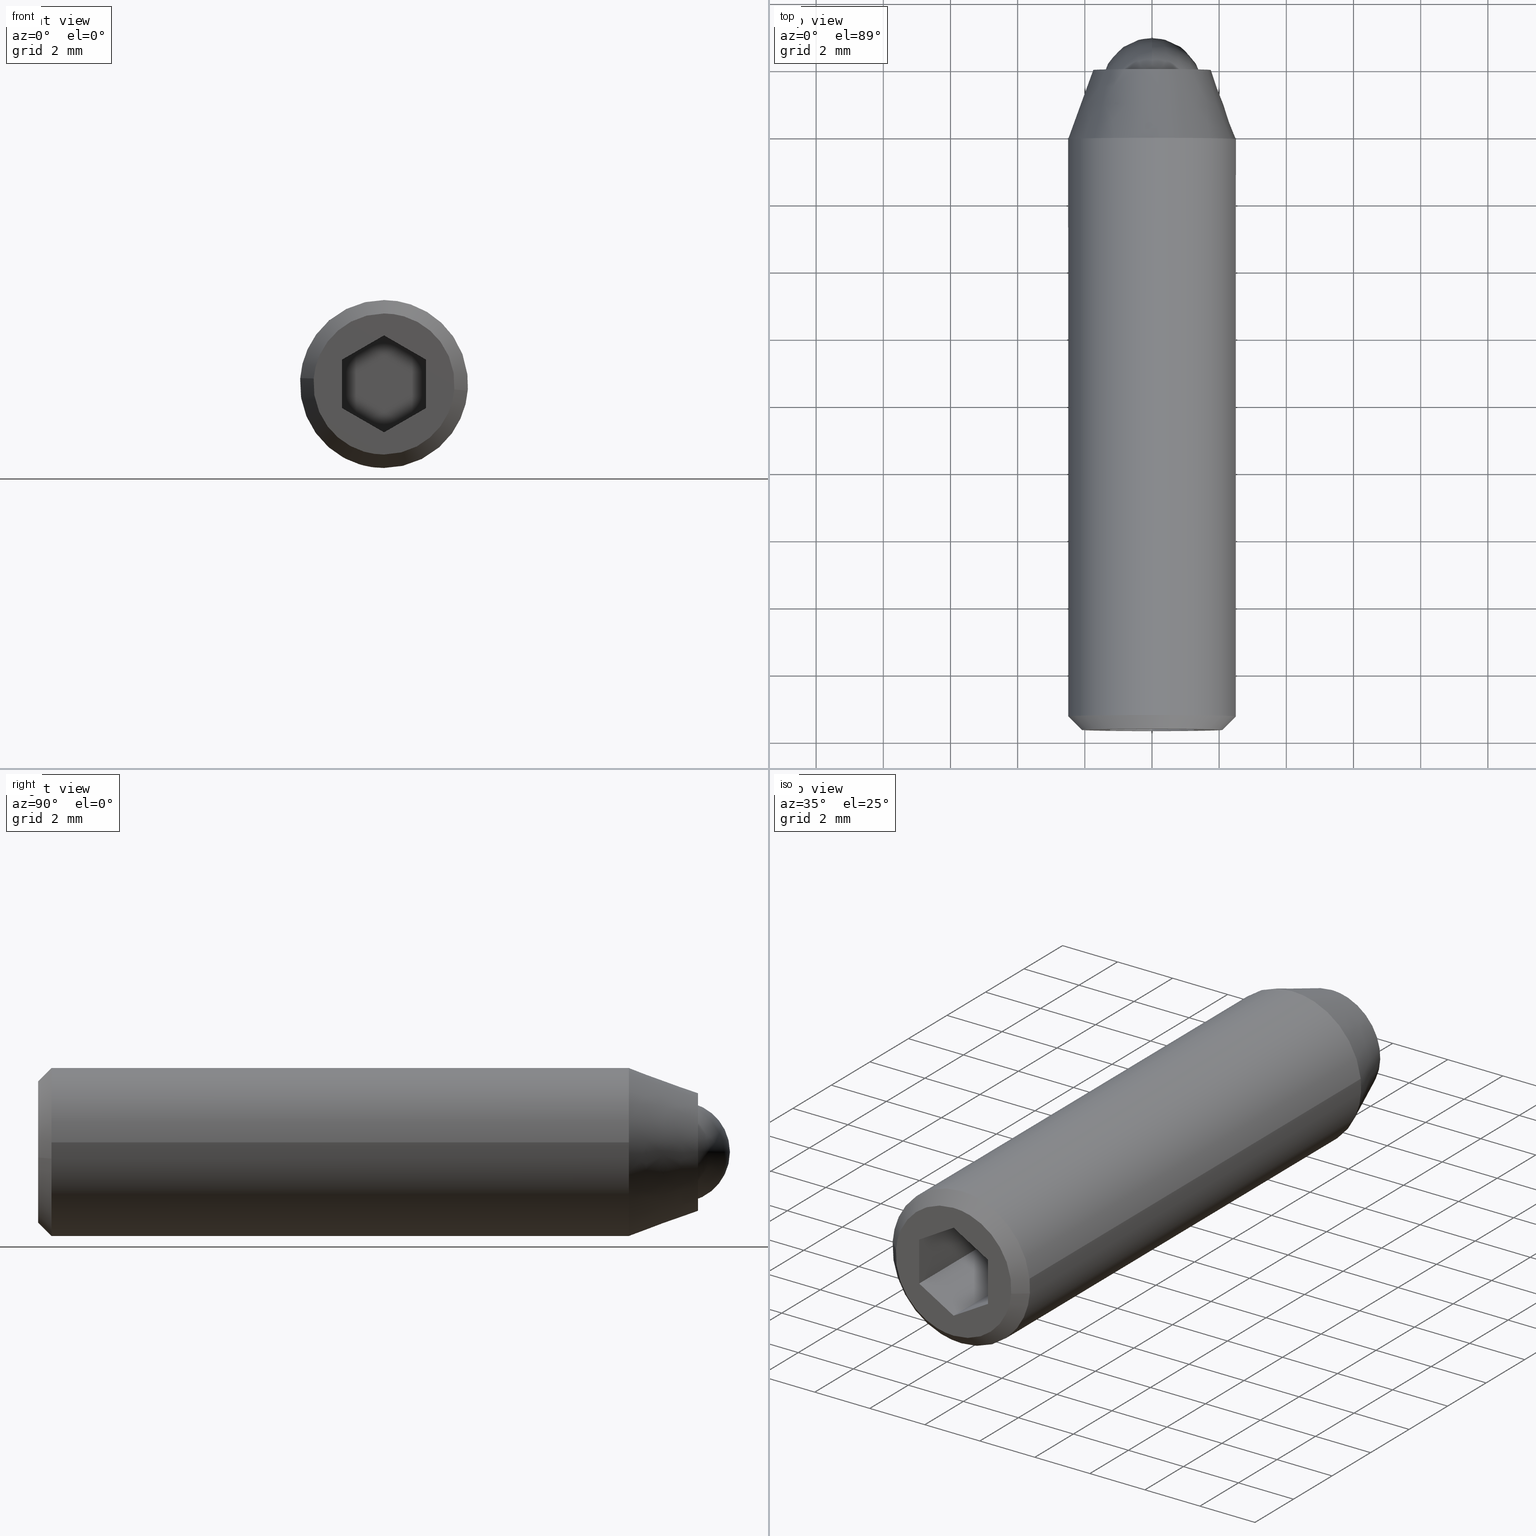
[diagram: canonical four-view strip — front | top / right | iso, engineering-drawing reading convention]
A machine part, canonical four-view strip (front | top / right | iso — engineering-drawing reading convention). The complete STEP part file that produces these views, byte-faithful:
ISO-10303-21;
HEADER;
/****************************************************************
 * Generated by software with PDE/Lib inside                    *
 * PDElib Version 4.4.1-0003, patched  Thursday August 19 11:58 *
 * International Technegroup Inc. (www.iti-oh.com)              *
 ****************************************************************/
FILE_DESCRIPTION((''),'2;1');
FILE_NAME('','2005-07-15T11:49:32',(''),(''),'','CADfix','');
FILE_SCHEMA(('AUTOMOTIVE_DESIGN'));
ENDSEC;
DATA;
#5=APPLICATION_CONTEXT('automotive design');
#6=APPLICATION_PROTOCOL_DEFINITION('Draft International Standard','automotive_design',1998,#5);
#7=PRODUCT_CONTEXT('None',#5,'mechanical');
#8=PRODUCT('body','','None',(#7));
#9=PRODUCT_RELATED_PRODUCT_CATEGORY('part','description',(#8));
#10=PRODUCT_DEFINITION_FORMATION('None','None',#8);
#11=PRODUCT_DEFINITION_CONTEXT('part definition',#5,'design');
#12=PRODUCT_DEFINITION('None','None',#10,#11);
#18=(NAMED_UNIT(*)PLANE_ANGLE_UNIT()SI_UNIT($,.RADIAN.));
#19=DIMENSIONAL_EXPONENTS(0.0,0.0,0.0,0.0,0.0,0.0,0.0);
#20=PLANE_ANGLE_MEASURE_WITH_UNIT(PLANE_ANGLE_MEASURE(0.017453292500000),#18);
#24=(CONVERSION_BASED_UNIT('DEGREE',#20)NAMED_UNIT(#19)PLANE_ANGLE_UNIT());
#28=(NAMED_UNIT(*)SI_UNIT($,.STERADIAN.)SOLID_ANGLE_UNIT());
#32=(LENGTH_UNIT()NAMED_UNIT(*)SI_UNIT(.MILLI.,.METRE.));
#34=UNCERTAINTY_MEASURE_WITH_UNIT(LENGTH_MEASURE(0.001000000000000),#32,'DISTANCE_ACCURACY_VALUE','');
#36=(GEOMETRIC_REPRESENTATION_CONTEXT(3)GLOBAL_UNCERTAINTY_ASSIGNED_CONTEXT((#34))GLOBAL_UNIT_ASSIGNED_CONTEXT((#24,#28,#32))REPRESENTATION_CONTEXT('None','None'));
#37=AXIS2_PLACEMENT_3D('',#38,#39,#40);
#38=CARTESIAN_POINT('',(0.0,0.0,0.0));
#39=DIRECTION('',(0.0,0.0,1.0));
#40=DIRECTION('',(1.0,0.0,0.0));
#41=ADVANCED_BREP_SHAPE_REPRESENTATION('',(#37,#941,#1152),#36);
#42=PRODUCT_DEFINITION_SHAPE('','',#12);
#43=SHAPE_DEFINITION_REPRESENTATION(#42,#41);
#44=CARTESIAN_POINT('',(-1.489514289545500,0.075000000000000,0.177051351985138));
#45=CARTESIAN_POINT('',(-1.494581423172908,0.075000000000000,0.134422092956966));
#46=CARTESIAN_POINT('',(-1.497202197632800,0.075000000000000,0.091572809302285));
#47=CARTESIAN_POINT('',(-1.588775006935085,0.075000000000000,-1.405629388330515));
#48=CARTESIAN_POINT('',(-0.091572809302285,0.075000000000000,-1.497202197632800));
#49=CARTESIAN_POINT('',(1.405629388330515,0.075000000000000,-1.588775006935085));
#50=CARTESIAN_POINT('',(1.497202197632800,0.075000000000000,-0.091572809302285));
#51=CARTESIAN_POINT('',(-1.489514289545500,-3.076875000000002,0.177051351985138));
#52=CARTESIAN_POINT('',(-1.494581423172908,-3.076875000000001,0.134422092956966));
#53=CARTESIAN_POINT('',(-1.497202197632800,-3.076875000000001,0.091572809302285));
#54=CARTESIAN_POINT('',(-1.588775006935085,-3.076875000000000,-1.405629388330515));
#55=CARTESIAN_POINT('',(-0.091572809302285,-3.076875000000001,-1.497202197632800));
#56=CARTESIAN_POINT('',(1.405629388330515,-3.076875000000000,-1.588775006935085));
#57=CARTESIAN_POINT('',(1.497202197632800,-3.076875000000001,-0.091572809302285));
#65=(BOUNDED_SURFACE()B_SPLINE_SURFACE(2,1,((#44,#51),(#45,#52),(#46,#53),(#47,#54),(#48,#55),(#49,#56),(#50,#57)),.UNSPECIFIED.,.F.,.F.,.U.)B_SPLINE_SURFACE_WITH_KNOTS((3,2,2,3),(2,2),(3.078760800517997,3.141592653589793,4.712388980384690,6.283185307179586),(0.0,3.151875000000001),.UNSPECIFIED.)GEOMETRIC_REPRESENTATION_ITEM()RATIONAL_B_SPLINE_SURFACE(((0.977505800795127,0.977505800795127),(0.988284271247462,0.988284271247462),(1.0,1.0),(0.707106781186548,0.707106781186548),(1.0,1.0),(0.707106781186548,0.707106781186548),(1.0,1.0)))REPRESENTATION_ITEM('')SURFACE());
#66=CARTESIAN_POINT('',(-1.489514289544436,-3.0,0.177051351994086));
#67=VERTEX_POINT('',#66);
#68=CARTESIAN_POINT('',(0.0,-3.0,-1.500000000000000));
#69=VERTEX_POINT('',#68);
#70=CARTESIAN_POINT('',(-1.489514289544436,-3.000000000000000,0.177051351994086));
#71=CARTESIAN_POINT('',(-1.500000000000000,-2.999999999999999,0.088836179486908));
#72=CARTESIAN_POINT('',(-1.500000000000000,-3.0,0.0));
#73=CARTESIAN_POINT('',(-1.500000000000000,-3.0,-1.500000000000000));
#74=CARTESIAN_POINT('',(0.0,-3.0,-1.500000000000000));
#82=(BOUNDED_CURVE()B_SPLINE_CURVE(2,(#70,#71,#72,#73,#74),.UNSPECIFIED.,.F.,.U.)B_SPLINE_CURVE_WITH_KNOTS((3,2,3),(0.229562473513614,0.250000000000000,0.500000000000000),.UNSPECIFIED.)CURVE()GEOMETRIC_REPRESENTATION_ITEM()RATIONAL_B_SPLINE_CURVE((0.956026754183906,0.976055948331269,1.0,0.707106781186548,1.0))REPRESENTATION_ITEM(''));
#83=EDGE_CURVE('',#67,#69,#82,.T.);
#84=ORIENTED_EDGE('',*,*,#83,.T.);
#85=CARTESIAN_POINT('',(1.497202197631061,-3.0,-0.091572809330721));
#86=VERTEX_POINT('',#85);
#87=CARTESIAN_POINT('',(0.0,-3.0,-1.500000000000000));
#88=CARTESIAN_POINT('',(1.411059100304847,-3.000000000000000,-1.500000000000000));
#89=CARTESIAN_POINT('',(1.497202197631061,-3.000000000000000,-0.091572809330721));
#97=(BOUNDED_CURVE()B_SPLINE_CURVE(2,(#87,#88,#89),.UNSPECIFIED.,.F.,.U.)B_SPLINE_CURVE_WITH_KNOTS((3,3),(0.500000000000000,0.739332962235415),.UNSPECIFIED.)CURVE()GEOMETRIC_REPRESENTATION_ITEM()RATIONAL_B_SPLINE_CURVE((1.0,0.719603993290844,0.976072041659156))REPRESENTATION_ITEM(''));
#98=EDGE_CURVE('',#69,#86,#97,.T.);
#99=ORIENTED_EDGE('',*,*,#98,.T.);
#100=CARTESIAN_POINT('',(1.497202197631061,1.040834E-016,-0.091572809330721));
#101=VERTEX_POINT('',#100);
#102=CARTESIAN_POINT('',(1.497202197631061,1.040834E-016,-0.091572809330721));
#103=CARTESIAN_POINT('',(1.497202197631061,-3.0,-0.091572809330721));
#104=QUASI_UNIFORM_CURVE('',1,(#102,#103),.UNSPECIFIED.,.F.,.U.);
#105=EDGE_CURVE('',#101,#86,#104,.T.);
#106=ORIENTED_EDGE('',*,*,#105,.F.);
#107=CARTESIAN_POINT('',(0.0,0.0,-1.500000000000000));
#108=VERTEX_POINT('',#107);
#109=CARTESIAN_POINT('',(0.0,0.0,-1.500000000000000));
#110=CARTESIAN_POINT('',(1.411059100304847,0.0,-1.500000000000000));
#111=CARTESIAN_POINT('',(1.497202197631061,1.040834E-016,-0.091572809330721));
#119=(BOUNDED_CURVE()B_SPLINE_CURVE(2,(#109,#110,#111),.UNSPECIFIED.,.F.,.U.)B_SPLINE_CURVE_WITH_KNOTS((3,3),(0.500000000000000,0.739332962235415),.UNSPECIFIED.)CURVE()GEOMETRIC_REPRESENTATION_ITEM()RATIONAL_B_SPLINE_CURVE((1.0,0.719603993290844,0.976072041659156))REPRESENTATION_ITEM(''));
#120=EDGE_CURVE('',#108,#101,#119,.T.);
#121=ORIENTED_EDGE('',*,*,#120,.F.);
#122=CARTESIAN_POINT('',(-1.489514289544436,1.064786E-016,0.177051351994086));
#123=VERTEX_POINT('',#122);
#124=CARTESIAN_POINT('',(-1.489514289544436,1.064786E-016,0.177051351994086));
#125=CARTESIAN_POINT('',(-1.500000000000000,0.0,0.088836179486908));
#126=CARTESIAN_POINT('',(-1.500000000000000,0.0,0.0));
#127=CARTESIAN_POINT('',(-1.500000000000000,0.0,-1.500000000000000));
#128=CARTESIAN_POINT('',(0.0,0.0,-1.500000000000000));
#136=(BOUNDED_CURVE()B_SPLINE_CURVE(2,(#124,#125,#126,#127,#128),.UNSPECIFIED.,.F.,.U.)B_SPLINE_CURVE_WITH_KNOTS((3,2,3),(0.229562473513614,0.250000000000000,0.500000000000000),.UNSPECIFIED.)CURVE()GEOMETRIC_REPRESENTATION_ITEM()RATIONAL_B_SPLINE_CURVE((0.956026754183906,0.976055948331269,1.0,0.707106781186548,1.0))REPRESENTATION_ITEM(''));
#137=EDGE_CURVE('',#123,#108,#136,.T.);
#138=ORIENTED_EDGE('',*,*,#137,.F.);
#139=CARTESIAN_POINT('',(-1.489514289544436,1.064786E-016,0.177051351994086));
#140=CARTESIAN_POINT('',(-1.489514289544436,-3.0,0.177051351994086));
#141=QUASI_UNIFORM_CURVE('',1,(#139,#140),.UNSPECIFIED.,.F.,.U.);
#142=EDGE_CURVE('',#123,#67,#141,.T.);
#143=ORIENTED_EDGE('',*,*,#142,.T.);
#144=EDGE_LOOP('',(#84,#99,#106,#121,#138,#143));
#145=FACE_OUTER_BOUND('',#144,.T.);
#146=ADVANCED_FACE('',(#145),#65,.F.);
#147=CARTESIAN_POINT('',(1.497202197632800,0.075000000000000,-0.091572809302285));
#148=CARTESIAN_POINT('',(1.588775006935085,0.075000000000000,1.405629388330515));
#149=CARTESIAN_POINT('',(0.091572809302285,0.075000000000000,1.497202197632800));
#150=CARTESIAN_POINT('',(-1.322315236259252,0.075000000000000,1.583679295098791));
#151=CARTESIAN_POINT('',(-1.489514289545500,0.075000000000000,0.177051351985138));
#152=CARTESIAN_POINT('',(1.497202197632800,-3.076875000000001,-0.091572809302285));
#153=CARTESIAN_POINT('',(1.588775006935085,-3.076875000000000,1.405629388330515));
#154=CARTESIAN_POINT('',(0.091572809302285,-3.076875000000001,1.497202197632800));
#155=CARTESIAN_POINT('',(-1.322315236259252,-3.076875000000001,1.583679295098791));
#156=CARTESIAN_POINT('',(-1.489514289545500,-3.076875000000002,0.177051351985138));
#164=(BOUNDED_SURFACE()B_SPLINE_SURFACE(2,1,((#147,#152),(#148,#153),(#149,#154),(#150,#155),(#151,#156)),.UNSPECIFIED.,.F.,.F.,.U.)B_SPLINE_SURFACE_WITH_KNOTS((3,2,3),(2,2),(0.0,1.570796326794897,3.078760800517997),(0.0,3.151875000000002),.UNSPECIFIED.)GEOMETRIC_REPRESENTATION_ITEM()RATIONAL_B_SPLINE_SURFACE(((1.0,1.0),(0.707106781186548,0.707106781186548),(1.0,1.0),(0.718822509939086,0.718822509939086),(0.977505800795127,0.977505800795127)))REPRESENTATION_ITEM('')SURFACE());
#165=CARTESIAN_POINT('',(0.0,-3.0,1.500000000000000));
#166=VERTEX_POINT('',#165);
#167=CARTESIAN_POINT('',(0.0,-3.0,1.500000000000000));
#168=CARTESIAN_POINT('',(-1.332261788910932,-3.0,1.500000000000000));
#169=CARTESIAN_POINT('',(-1.489514289544436,-3.000000000000000,0.177051351994086));
#177=(BOUNDED_CURVE()B_SPLINE_CURVE(2,(#167,#168,#169),.UNSPECIFIED.,.F.,.U.)B_SPLINE_CURVE_WITH_KNOTS((3,3),(0.0,0.229562473513614),.UNSPECIFIED.)CURVE()GEOMETRIC_REPRESENTATION_ITEM()RATIONAL_B_SPLINE_CURVE((1.0,0.731050832855279,0.956026754183906))REPRESENTATION_ITEM(''));
#178=EDGE_CURVE('',#166,#67,#177,.T.);
#179=ORIENTED_EDGE('',*,*,#178,.T.);
#180=ORIENTED_EDGE('',*,*,#142,.F.);
#181=CARTESIAN_POINT('',(0.0,0.0,1.500000000000000));
#182=VERTEX_POINT('',#181);
#183=CARTESIAN_POINT('',(0.0,0.0,1.500000000000000));
#184=CARTESIAN_POINT('',(-1.332261788910932,0.0,1.500000000000000));
#185=CARTESIAN_POINT('',(-1.489514289544436,1.064786E-016,0.177051351994086));
#193=(BOUNDED_CURVE()B_SPLINE_CURVE(2,(#183,#184,#185),.UNSPECIFIED.,.F.,.U.)B_SPLINE_CURVE_WITH_KNOTS((3,3),(0.0,0.229562473513614),.UNSPECIFIED.)CURVE()GEOMETRIC_REPRESENTATION_ITEM()RATIONAL_B_SPLINE_CURVE((1.0,0.731050832855279,0.956026754183906))REPRESENTATION_ITEM(''));
#194=EDGE_CURVE('',#182,#123,#193,.T.);
#195=ORIENTED_EDGE('',*,*,#194,.F.);
#196=CARTESIAN_POINT('',(1.497202197631061,1.040834E-016,-0.091572809330721));
#197=CARTESIAN_POINT('',(1.500000000000000,0.0,-0.045829144976399));
#198=CARTESIAN_POINT('',(1.500000000000000,0.0,0.0));
#199=CARTESIAN_POINT('',(1.500000000000000,0.0,1.500000000000000));
#200=CARTESIAN_POINT('',(0.0,0.0,1.500000000000000));
#208=(BOUNDED_CURVE()B_SPLINE_CURVE(2,(#196,#197,#198,#199,#200),.UNSPECIFIED.,.F.,.U.)B_SPLINE_CURVE_WITH_KNOTS((3,2,3),(0.739332962235414,0.750000000000000,1.0),.UNSPECIFIED.)CURVE()GEOMETRIC_REPRESENTATION_ITEM()RATIONAL_B_SPLINE_CURVE((0.976072041659155,0.987502787895703,1.0,0.707106781186548,1.0))REPRESENTATION_ITEM(''));
#209=EDGE_CURVE('',#101,#182,#208,.T.);
#210=ORIENTED_EDGE('',*,*,#209,.F.);
#211=ORIENTED_EDGE('',*,*,#105,.T.);
#212=CARTESIAN_POINT('',(1.497202197631061,-3.0,-0.091572809330721));
#213=CARTESIAN_POINT('',(1.500000000000000,-3.000000000000000,-0.045829144976398));
#214=CARTESIAN_POINT('',(1.500000000000000,-3.0,0.0));
#215=CARTESIAN_POINT('',(1.500000000000000,-3.0,1.500000000000000));
#216=CARTESIAN_POINT('',(0.0,-3.0,1.500000000000000));
#224=(BOUNDED_CURVE()B_SPLINE_CURVE(2,(#212,#213,#214,#215,#216),.UNSPECIFIED.,.F.,.U.)B_SPLINE_CURVE_WITH_KNOTS((3,2,3),(0.739332962235414,0.750000000000000,1.0),.UNSPECIFIED.)CURVE()GEOMETRIC_REPRESENTATION_ITEM()RATIONAL_B_SPLINE_CURVE((0.976072041659155,0.987502787895703,1.0,0.707106781186548,1.0))REPRESENTATION_ITEM(''));
#225=EDGE_CURVE('',#86,#166,#224,.T.);
#226=ORIENTED_EDGE('',*,*,#225,.T.);
#227=EDGE_LOOP('',(#179,#180,#195,#210,#211,#226));
#228=FACE_OUTER_BOUND('',#227,.T.);
#229=ADVANCED_FACE('',(#228),#164,.F.);
#230=CARTESIAN_POINT('',(-1.403997998205588,0.051515200000000,-1.012924569518730));
#231=CARTESIAN_POINT('',(-0.924204506662681,0.051515200000000,-1.677958395283637));
#232=CARTESIAN_POINT('',(-0.105690284069721,0.051515200000000,-1.728020869767858));
#233=CARTESIAN_POINT('',(1.622330585698137,0.051515200000000,-1.833711153837579));
#234=CARTESIAN_POINT('',(1.728020869767858,0.051515200000000,-0.105690284069722));
#235=CARTESIAN_POINT('',(1.833711153837579,0.051515200000000,1.622330585698135));
#236=CARTESIAN_POINT('',(0.105690284069721,0.051515200000000,1.728020869767857));
#237=CARTESIAN_POINT('',(-1.622330585698137,0.051515200000000,1.833711153837578));
#238=CARTESIAN_POINT('',(-1.728020869767858,0.051515200000000,0.105690284069721));
#239=CARTESIAN_POINT('',(-2.043019830782372,-2.113411079999999,-1.473951519345710));
#240=CARTESIAN_POINT('',(-1.344851016328736,-2.113411080000000,-2.441671769599102));
#241=CARTESIAN_POINT('',(-0.153794625456328,-2.113411080000000,-2.514519899211838));
#242=CARTESIAN_POINT('',(2.360725273755510,-2.113411080000000,-2.668314524668165));
#243=CARTESIAN_POINT('',(2.514519899211837,-2.113411080000000,-0.153794625456329));
#244=CARTESIAN_POINT('',(2.668314524668165,-2.113411080000000,2.360725273755509));
#245=CARTESIAN_POINT('',(0.153794625456328,-2.113411080000000,2.514519899211837));
#246=CARTESIAN_POINT('',(-2.360725273755510,-2.113411080000000,2.668314524668165));
#247=CARTESIAN_POINT('',(-2.514519899211837,-2.113411080000000,0.153794625456327));
#255=(BOUNDED_SURFACE()B_SPLINE_SURFACE(2,1,((#230,#239),(#231,#240),(#232,#241),(#233,#242),(#234,#243),(#235,#244),(#236,#245),(#237,#246),(#238,#247)),.UNSPECIFIED.,.F.,.F.,.U.)B_SPLINE_SURFACE_WITH_KNOTS((3,2,2,2,3),(2,2),(0.0,2.337427843149494,6.511406134487875,10.685384425826260,14.859362717164640),(0.0,2.303866434672635),.UNSPECIFIED.)GEOMETRIC_REPRESENTATION_ITEM()RATIONAL_B_SPLINE_SURFACE(((0.855662221768731,0.855662221768731),(0.835979797464467,0.835979797464467),(1.0,1.0),(0.707106781186548,0.707106781186548),(1.0,1.0),(0.707106781186548,0.707106781186548),(1.0,1.0),(0.707106781186548,0.707106781186548),(1.0,1.0)))REPRESENTATION_ITEM('')SURFACE());
#256=CARTESIAN_POINT('',(-1.419203752698367,-7.804877E-014,-1.023894871716317));
#257=VERTEX_POINT('',#256);
#258=CARTESIAN_POINT('',(0.0,0.0,-1.750000000000000));
#259=VERTEX_POINT('',#258);
#260=CARTESIAN_POINT('',(-1.419203752698368,-7.804877E-014,-1.023894871716317));
#261=CARTESIAN_POINT('',(-0.895349925674755,0.0,-1.750000000000000));
#262=CARTESIAN_POINT('',(0.0,0.0,-1.750000000000000));
#270=(BOUNDED_CURVE()B_SPLINE_CURVE(2,(#260,#261,#262),.UNSPECIFIED.,.F.,.U.)B_SPLINE_CURVE_WITH_KNOTS((3,3),(0.850743050382130,1.0),.UNSPECIFIED.)CURVE()GEOMETRIC_REPRESENTATION_ITEM()RATIONAL_B_SPLINE_CURVE((0.859068214727285,0.825134606384579,1.0))REPRESENTATION_ITEM(''));
#271=EDGE_CURVE('',#257,#259,#270,.T.);
#272=ORIENTED_EDGE('',*,*,#271,.T.);
#273=CARTESIAN_POINT('',(0.0,0.0,1.750000000000000));
#274=VERTEX_POINT('',#273);
#275=CARTESIAN_POINT('',(0.0,0.0,-1.750000000000000));
#276=CARTESIAN_POINT('',(1.750000000000000,0.0,-1.750000000000000));
#277=CARTESIAN_POINT('',(1.750000000000000,0.0,-5.143347E-016));
#278=CARTESIAN_POINT('',(1.750000000000000,0.0,1.750000000000000));
#279=CARTESIAN_POINT('',(0.0,0.0,1.750000000000000));
#287=(BOUNDED_CURVE()B_SPLINE_CURVE(2,(#275,#276,#277,#278,#279),.UNSPECIFIED.,.F.,.U.)B_SPLINE_CURVE_WITH_KNOTS((3,2,3),(0.0,0.250000000000000,0.500000000000000),.UNSPECIFIED.)CURVE()GEOMETRIC_REPRESENTATION_ITEM()RATIONAL_B_SPLINE_CURVE((1.0,0.707106781186547,1.0,0.707106781186547,1.0))REPRESENTATION_ITEM(''));
#288=EDGE_CURVE('',#259,#274,#287,.T.);
#289=ORIENTED_EDGE('',*,*,#288,.T.);
#290=CARTESIAN_POINT('',(-1.746735834039291,0.000000216714722,0.106834685430423));
#291=VERTEX_POINT('',#290);
#292=CARTESIAN_POINT('',(0.0,0.0,1.750000000000000));
#293=CARTESIAN_POINT('',(-1.646236096638474,0.0,1.750000000000000));
#294=CARTESIAN_POINT('',(-1.746735834039291,0.000000216714722,0.106834685430423));
#302=(BOUNDED_CURVE()B_SPLINE_CURVE(2,(#292,#293,#294),.UNSPECIFIED.,.F.,.U.)B_SPLINE_CURVE_WITH_KNOTS((3,3),(0.500000000000000,0.739333012411624),.UNSPECIFIED.)CURVE()GEOMETRIC_REPRESENTATION_ITEM()RATIONAL_B_SPLINE_CURVE((1.0,0.719603934505757,0.976072149196349))REPRESENTATION_ITEM(''));
#303=EDGE_CURVE('',#274,#291,#302,.T.);
#304=ORIENTED_EDGE('',*,*,#303,.T.);
#305=CARTESIAN_POINT('',(-2.495336895541660,-2.060607999999479,0.152622992171653));
#306=VERTEX_POINT('',#305);
#307=CARTESIAN_POINT('',(-1.746735834039291,0.000000216714722,0.106834685430423));
#308=CARTESIAN_POINT('',(-2.495336895541660,-2.060607999999479,0.152622992171653));
#309=QUASI_UNIFORM_CURVE('',1,(#307,#308),.UNSPECIFIED.,.F.,.U.);
#310=EDGE_CURVE('',#291,#306,#309,.T.);
#311=ORIENTED_EDGE('',*,*,#310,.T.);
#312=CARTESIAN_POINT('',(0.0,-2.060608000000000,2.500000000000000));
#313=VERTEX_POINT('',#312);
#314=CARTESIAN_POINT('',(0.0,-2.060608000000000,2.500000000000000));
#315=CARTESIAN_POINT('',(-2.351763615586854,-2.060607999999999,2.500000000000000));
#316=CARTESIAN_POINT('',(-2.495336895541660,-2.060607999999479,0.152622992171653));
#324=(BOUNDED_CURVE()B_SPLINE_CURVE(2,(#314,#315,#316),.UNSPECIFIED.,.F.,.U.)B_SPLINE_CURVE_WITH_KNOTS((3,3),(0.500000000000000,0.739332848609187),.UNSPECIFIED.)CURVE()GEOMETRIC_REPRESENTATION_ITEM()RATIONAL_B_SPLINE_CURVE((1.0,0.719604126412250,0.976071798136641))REPRESENTATION_ITEM(''));
#325=EDGE_CURVE('',#313,#306,#324,.T.);
#326=ORIENTED_EDGE('',*,*,#325,.F.);
#327=CARTESIAN_POINT('',(2.483672983585108,-2.060607999999999,0.285251661887261));
#328=VERTEX_POINT('',#327);
#329=CARTESIAN_POINT('',(2.483672983585108,-2.060607999999999,0.285251661887262));
#330=CARTESIAN_POINT('',(2.229307514231581,-2.060608000000000,2.499999999999999));
#331=CARTESIAN_POINT('',(0.0,-2.060608000000000,2.500000000000000));
#339=(BOUNDED_CURVE()B_SPLINE_CURVE(2,(#329,#330,#331),.UNSPECIFIED.,.F.,.U.)B_SPLINE_CURVE_WITH_KNOTS((3,3),(0.269767755881564,0.500000000000000),.UNSPECIFIED.)CURVE()GEOMETRIC_REPRESENTATION_ITEM()RATIONAL_B_SPLINE_CURVE((0.957343736450889,0.730266147782027,1.0))REPRESENTATION_ITEM(''));
#340=EDGE_CURVE('',#328,#313,#339,.T.);
#341=ORIENTED_EDGE('',*,*,#340,.F.);
#342=CARTESIAN_POINT('',(0.0,-2.060608000000000,-2.500000000000000));
#343=VERTEX_POINT('',#342);
#344=CARTESIAN_POINT('',(0.0,-2.060608000000000,-2.500000000000000));
#345=CARTESIAN_POINT('',(2.500000000000000,-2.060607999999999,-2.500000000000000));
#346=CARTESIAN_POINT('',(2.500000000000000,-2.060608000000000,-5.143347E-016));
#347=CARTESIAN_POINT('',(2.500000000000000,-2.060608000000000,0.143093087599952));
#348=CARTESIAN_POINT('',(2.483672983585108,-2.060608000000000,0.285251661887261));
#356=(BOUNDED_CURVE()B_SPLINE_CURVE(2,(#344,#345,#346,#347,#348),.UNSPECIFIED.,.F.,.U.)B_SPLINE_CURVE_WITH_KNOTS((3,2,3),(0.0,0.250000000000000,0.269767755881565),.UNSPECIFIED.)CURVE()GEOMETRIC_REPRESENTATION_ITEM()RATIONAL_B_SPLINE_CURVE((1.0,0.707106781186548,1.0,0.976840633404520,0.957343736450889))REPRESENTATION_ITEM(''));
#357=EDGE_CURVE('',#343,#328,#356,.T.);
#358=ORIENTED_EDGE('',*,*,#357,.F.);
#359=CARTESIAN_POINT('',(-2.027433932424944,-2.060608000000348,-1.462706959596680));
#360=VERTEX_POINT('',#359);
#361=CARTESIAN_POINT('',(-2.027433932424943,-2.060608000000348,-1.462706959596681));
#362=CARTESIAN_POINT('',(-1.279071322389564,-2.060608000000000,-2.500000000000000));
#363=CARTESIAN_POINT('',(0.0,-2.060608000000000,-2.500000000000000));
#371=(BOUNDED_CURVE()B_SPLINE_CURVE(2,(#361,#362,#363),.UNSPECIFIED.,.F.,.U.)B_SPLINE_CURVE_WITH_KNOTS((3,3),(0.850743050382414,1.0),.UNSPECIFIED.)CURVE()GEOMETRIC_REPRESENTATION_ITEM()RATIONAL_B_SPLINE_CURVE((0.859068214727156,0.825134606384912,1.0))REPRESENTATION_ITEM(''));
#372=EDGE_CURVE('',#360,#343,#371,.T.);
#373=ORIENTED_EDGE('',*,*,#372,.F.);
#374=CARTESIAN_POINT('',(-1.419203752698367,-7.804877E-014,-1.023894871716317));
#375=CARTESIAN_POINT('',(-2.027433932424944,-2.060608000000348,-1.462706959596680));
#376=QUASI_UNIFORM_CURVE('',1,(#374,#375),.UNSPECIFIED.,.F.,.U.);
#377=EDGE_CURVE('',#257,#360,#376,.T.);
#378=ORIENTED_EDGE('',*,*,#377,.F.);
#379=EDGE_LOOP('',(#272,#289,#304,#311,#326,#341,#358,#373,#378));
#380=FACE_OUTER_BOUND('',#379,.T.);
#381=ADVANCED_FACE('',(#380),#255,.T.);
#382=CARTESIAN_POINT('',(-1.727692392239588,0.051515200000000,0.111060844184074));
#383=CARTESIAN_POINT('',(-1.727856525219665,0.051515200000000,0.108377293680944));
#384=CARTESIAN_POINT('',(-1.765768637780785,0.051515200000000,-0.511480267486979));
#385=CARTESIAN_POINT('',(-1.402156284464231,0.051515200000000,-1.015477338484896));
#386=CARTESIAN_POINT('',(-1.400314237801283,0.051515200000000,-1.018030568908172));
#387=CARTESIAN_POINT('',(-2.514041916974626,-2.113411080000000,0.161609565954857));
#388=CARTESIAN_POINT('',(-2.514280754162153,-2.113411079999999,0.157704612456485));
#389=CARTESIAN_POINT('',(-2.569448352611875,-2.113411080000001,-0.744277649159977));
#390=CARTESIAN_POINT('',(-2.040339871337255,-2.113411080000000,-1.477666166822380));
#391=CARTESIAN_POINT('',(-2.037659427443148,-2.113411080000000,-1.481381485785779));
#399=(BOUNDED_SURFACE()B_SPLINE_SURFACE(2,1,((#382,#387),(#383,#388),(#384,#389),(#385,#390),(#386,#391)),.UNSPECIFIED.,.F.,.F.,.U.)B_SPLINE_SURFACE_WITH_KNOTS((3,1,1,3),(2,2),(0.0,0.009165381909939,1.841851940627601,1.851015382917949),(0.0,2.303868216883418),.UNSPECIFIED.)GEOMETRIC_REPRESENTATION_ITEM()RATIONAL_B_SPLINE_SURFACE(((1.001289004283307,1.001289004283307),(1.000644502141654,1.000644502141654),(0.871126983722081,0.871126983722081),(0.855584897878827,0.855584897878827),(0.855507573988924,0.855507573988924)))REPRESENTATION_ITEM('')SURFACE());
#400=CARTESIAN_POINT('',(-1.746735834039291,0.000000216714722,0.106834685430423));
#401=CARTESIAN_POINT('',(-1.750000000000000,0.0,0.053467081120302));
#402=CARTESIAN_POINT('',(-1.750000000000000,0.0,-5.143347E-016));
#403=CARTESIAN_POINT('',(-1.750000000000001,0.0,-0.565383662687904));
#404=CARTESIAN_POINT('',(-1.419203752698367,-7.804877E-014,-1.023894871716317));
#412=(BOUNDED_CURVE()B_SPLINE_CURVE(2,(#400,#401,#402,#403,#404),.UNSPECIFIED.,.F.,.U.)B_SPLINE_CURVE_WITH_KNOTS((3,2,3),(0.739333012411624,0.750000000000000,0.850743050382130),.UNSPECIFIED.)CURVE()GEOMETRIC_REPRESENTATION_ITEM()RATIONAL_B_SPLINE_CURVE((0.976072149196349,0.987502846680790,1.0,0.881972174801969,0.859068214727285))REPRESENTATION_ITEM(''));
#413=EDGE_CURVE('',#291,#257,#412,.T.);
#414=ORIENTED_EDGE('',*,*,#413,.T.);
#415=ORIENTED_EDGE('',*,*,#377,.T.);
#416=CARTESIAN_POINT('',(-2.495336895541660,-2.060607999999479,0.152622992171653));
#417=CARTESIAN_POINT('',(-2.500000000000000,-2.060608000000000,0.076382732217682));
#418=CARTESIAN_POINT('',(-2.500000000000000,-2.060608000000000,-5.143347E-016));
#419=CARTESIAN_POINT('',(-2.500000000000000,-2.060608000000000,-0.807690946699587));
#420=CARTESIAN_POINT('',(-2.027433932424943,-2.060608000000348,-1.462706959596681));
#428=(BOUNDED_CURVE()B_SPLINE_CURVE(2,(#416,#417,#418,#419,#420),.UNSPECIFIED.,.F.,.U.)B_SPLINE_CURVE_WITH_KNOTS((3,2,3),(0.739332848609187,0.750000000000000,0.850743050382414),.UNSPECIFIED.)CURVE()GEOMETRIC_REPRESENTATION_ITEM()RATIONAL_B_SPLINE_CURVE((0.976071798136641,0.987502654774297,1.0,0.881972174801636,0.859068214727156))REPRESENTATION_ITEM(''));
#429=EDGE_CURVE('',#306,#360,#428,.T.);
#430=ORIENTED_EDGE('',*,*,#429,.F.);
#431=ORIENTED_EDGE('',*,*,#310,.F.);
#432=EDGE_LOOP('',(#414,#415,#430,#431));
#433=FACE_OUTER_BOUND('',#432,.T.);
#434=ADVANCED_FACE('',(#433),#399,.T.);
#435=CARTESIAN_POINT('',(2.483672983589284,-1.630873199999999,0.285251661850900));
#436=CARTESIAN_POINT('',(2.244537881465204,-1.630873200000000,2.367389899783016));
#437=CARTESIAN_POINT('',(0.152621348837143,-1.630873199999999,2.495336996054666));
#438=CARTESIAN_POINT('',(-2.342715647217524,-1.630873199999999,2.647958344891809));
#439=CARTESIAN_POINT('',(-2.495336996054667,-1.630873199999999,0.152621348837142));
#440=CARTESIAN_POINT('',(2.483672983589284,-19.690478170000006,0.285251661850900));
#441=CARTESIAN_POINT('',(2.244537881465204,-19.690478169999999,2.367389899783016));
#442=CARTESIAN_POINT('',(0.152621348837143,-19.690478169999999,2.495336996054666));
#443=CARTESIAN_POINT('',(-2.342715647217524,-19.690478169999999,2.647958344891809));
#444=CARTESIAN_POINT('',(-2.495336996054667,-19.690478169999999,0.152621348837142));
#452=(BOUNDED_SURFACE()B_SPLINE_SURFACE(2,1,((#435,#440),(#436,#441),(#437,#442),(#438,#443),(#439,#444)),.UNSPECIFIED.,.F.,.F.,.U.)B_SPLINE_SURFACE_WITH_KNOTS((3,2,3),(2,2),(0.0,3.645079348883235,7.787214972614184),(0.0,18.059604970000009),.UNSPECIFIED.)GEOMETRIC_REPRESENTATION_ITEM()RATIONAL_B_SPLINE_SURFACE(((0.938140952186599,0.938140952186599),(0.742253967444162,0.742253967444162),(1.0,1.0),(0.707106781186548,0.707106781186548),(1.0,1.0)))REPRESENTATION_ITEM('')SURFACE());
#453=CARTESIAN_POINT('',(2.483672983576886,-19.250000000000000,0.285251661958853));
#454=VERTEX_POINT('',#453);
#455=CARTESIAN_POINT('',(0.0,-19.250000000000000,2.500000000000000));
#456=VERTEX_POINT('',#455);
#457=CARTESIAN_POINT('',(2.483672983576886,-19.250000000000004,0.285251661958853));
#458=CARTESIAN_POINT('',(2.229307514102217,-19.249999999999993,2.499999999999999));
#459=CARTESIAN_POINT('',(0.0,-19.250000000000000,2.500000000000000));
#467=(BOUNDED_CURVE()B_SPLINE_CURVE(2,(#457,#458,#459),.UNSPECIFIED.,.F.,.U.)B_SPLINE_CURVE_WITH_KNOTS((3,3),(0.269767755891321,0.500000000000000),.UNSPECIFIED.)CURVE()GEOMETRIC_REPRESENTATION_ITEM()RATIONAL_B_SPLINE_CURVE((0.957343736431644,0.730266147793458,1.0))REPRESENTATION_ITEM(''));
#468=EDGE_CURVE('',#454,#456,#467,.T.);
#469=ORIENTED_EDGE('',*,*,#468,.F.);
#470=CARTESIAN_POINT('',(2.483672983585108,-2.060607999999999,0.285251661887261));
#471=CARTESIAN_POINT('',(2.483672983576886,-19.250000000000000,0.285251661958853));
#472=QUASI_UNIFORM_CURVE('',1,(#470,#471),.UNSPECIFIED.,.F.,.U.);
#473=EDGE_CURVE('',#328,#454,#472,.T.);
#474=ORIENTED_EDGE('',*,*,#473,.F.);
#475=ORIENTED_EDGE('',*,*,#340,.T.);
#476=ORIENTED_EDGE('',*,*,#325,.T.);
#477=CARTESIAN_POINT('',(-2.493815165195101,-19.249999999996600,0.174384544104496));
#478=VERTEX_POINT('',#477);
#479=CARTESIAN_POINT('',(-2.495336895541660,-2.060607999999479,0.152622992171653));
#480=CARTESIAN_POINT('',(-2.493815165195101,-19.249999999996600,0.174384544104496));
#481=QUASI_UNIFORM_CURVE('',1,(#479,#480),.UNSPECIFIED.,.F.,.U.);
#482=EDGE_CURVE('',#306,#478,#481,.T.);
#483=ORIENTED_EDGE('',*,*,#482,.T.);
#484=CARTESIAN_POINT('',(0.0,-19.250000000000000,2.500000000000000));
#485=CARTESIAN_POINT('',(-2.331240235093511,-19.249999999998305,2.499996679859113));
#486=CARTESIAN_POINT('',(-2.493815165195101,-19.249999999996597,0.174384544104496));
#494=(BOUNDED_CURVE()B_SPLINE_CURVE(2,(#484,#485,#486),.UNSPECIFIED.,.F.,.U.)B_SPLINE_CURVE_WITH_KNOTS((3,3),(0.500000000000000,0.737829682995177),.UNSPECIFIED.)CURVE()GEOMETRIC_REPRESENTATION_ITEM()RATIONAL_B_SPLINE_CURVE((1.0,0.721365194472639,0.972871408705238))REPRESENTATION_ITEM(''));
#495=EDGE_CURVE('',#456,#478,#494,.T.);
#496=ORIENTED_EDGE('',*,*,#495,.F.);
#497=EDGE_LOOP('',(#469,#474,#475,#476,#483,#496));
#498=FACE_OUTER_BOUND('',#497,.T.);
#499=ADVANCED_FACE('',(#498),#452,.T.);
#500=CARTESIAN_POINT('',(-2.491745979351641,-1.630873199999998,0.211333952943859));
#501=CARTESIAN_POINT('',(-2.493532695344878,-1.630873200000000,0.182121404677623));
#502=CARTESIAN_POINT('',(-2.647958344891809,-1.630873199999999,-2.342715647217526));
#503=CARTESIAN_POINT('',(-0.152621348837143,-1.630873199999999,-2.495336996054667));
#504=CARTESIAN_POINT('',(2.342715647217524,-1.630873199999999,-2.647958344891810));
#505=CARTESIAN_POINT('',(2.495336996054667,-1.630873199999999,-0.152621348837143));
#506=CARTESIAN_POINT('',(2.508759095986944,-1.630873200000000,0.066828045241366));
#507=CARTESIAN_POINT('',(2.481381535533821,-1.630873199999999,0.305203193742844));
#508=CARTESIAN_POINT('',(2.479078468728524,-1.630873200000000,0.325255889550480));
#509=CARTESIAN_POINT('',(-2.491745979351641,-19.690478169999999,0.211333952943859));
#510=CARTESIAN_POINT('',(-2.493532695344878,-19.690478170000013,0.182121404677623));
#511=CARTESIAN_POINT('',(-2.647958344891809,-19.690478169999999,-2.342715647217526));
#512=CARTESIAN_POINT('',(-0.152621348837143,-19.690478169999999,-2.495336996054667));
#513=CARTESIAN_POINT('',(2.342715647217524,-19.690478169999999,-2.647958344891810));
#514=CARTESIAN_POINT('',(2.495336996054667,-19.690478169999999,-0.152621348837143));
#515=CARTESIAN_POINT('',(2.508759095986944,-19.690478169999999,0.066828045241366));
#516=CARTESIAN_POINT('',(2.481381535533821,-19.690478170000002,0.305203193742844));
#517=CARTESIAN_POINT('',(2.479078468728524,-19.690478170000002,0.325255889550480));
#525=(BOUNDED_SURFACE()B_SPLINE_SURFACE(2,1,((#500,#509),(#501,#510),(#502,#511),(#503,#512),(#504,#513),(#505,#514),(#506,#515),(#507,#516),(#508,#517)),.UNSPECIFIED.,.F.,.F.,.U.)B_SPLINE_SURFACE_WITH_KNOTS((3,1,2,2,1,3),(2,2),(0.0,0.069592886433216,4.211728510164166,8.353864133895115,8.850920408742830,8.894954837777750),(0.0,18.059604970000009),.UNSPECIFIED.)GEOMETRIC_REPRESENTATION_ITEM()RATIONAL_B_SPLINE_SURFACE(((1.009841920383855,1.009841920383855),(1.004920960191927,1.004920960191927),(0.707106781186548,0.707106781186548),(1.0,1.0),(0.707106781186548,0.707106781186548),(1.0,1.0),(0.964852813742386,0.964852813742386),(0.935774536890002,0.935774536890002),(0.933408121593406,0.933408121593406)))REPRESENTATION_ITEM('')SURFACE());
#526=CARTESIAN_POINT('',(2.492293334335535,-19.249999999993200,-0.196147739371851));
#527=VERTEX_POINT('',#526);
#528=CARTESIAN_POINT('',(2.492293334335535,-19.249999999993197,-0.196147739371851));
#529=CARTESIAN_POINT('',(2.500000000000000,-19.250000000000004,-0.098225267571118));
#530=CARTESIAN_POINT('',(2.500000000000000,-19.250000000000000,-5.143347E-016));
#531=CARTESIAN_POINT('',(2.500000000000000,-19.250000000000000,0.143093087672248));
#532=CARTESIAN_POINT('',(2.483672983576886,-19.249999999999993,0.285251661958853));
#540=(BOUNDED_CURVE()B_SPLINE_CURVE(2,(#528,#529,#530,#531,#532),.UNSPECIFIED.,.F.,.U.)B_SPLINE_CURVE_WITH_KNOTS((3,2,3),(0.236331300625654,0.250000000000000,0.269767755891321),.UNSPECIFIED.)CURVE()GEOMETRIC_REPRESENTATION_ITEM()RATIONAL_B_SPLINE_CURVE((0.969723356156972,0.983986122573018,1.0,0.976840633393090,0.957343736431644))REPRESENTATION_ITEM(''));
#541=EDGE_CURVE('',#527,#454,#540,.T.);
#542=ORIENTED_EDGE('',*,*,#541,.F.);
#543=CARTESIAN_POINT('',(0.0,-19.250000000000000,-2.500000000000000));
#544=VERTEX_POINT('',#543);
#545=CARTESIAN_POINT('',(0.0,-19.250000000000000,-2.500000000000000));
#546=CARTESIAN_POINT('',(2.310976229049340,-19.249999999999996,-2.500000000000000));
#547=CARTESIAN_POINT('',(2.492293334335536,-19.249999999993193,-0.196147739371851));
#555=(BOUNDED_CURVE()B_SPLINE_CURVE(2,(#545,#546,#547),.UNSPECIFIED.,.F.,.U.)B_SPLINE_CURVE_WITH_KNOTS((3,3),(0.0,0.236331300625654),.UNSPECIFIED.)CURVE()GEOMETRIC_REPRESENTATION_ITEM()RATIONAL_B_SPLINE_CURVE((1.0,0.723120658613529,0.969723356156972))REPRESENTATION_ITEM(''));
#556=EDGE_CURVE('',#544,#527,#555,.T.);
#557=ORIENTED_EDGE('',*,*,#556,.F.);
#558=CARTESIAN_POINT('',(-2.493815165195101,-19.249999999996597,0.174384544104496));
#559=CARTESIAN_POINT('',(-2.499906585700300,-19.249999999996653,0.087295391578169));
#560=CARTESIAN_POINT('',(-2.499908243746339,-19.249999999996710,-0.000006416222350));
#561=CARTESIAN_POINT('',(-2.499955723972662,-19.249999999998415,-2.500003096081465));
#562=CARTESIAN_POINT('',(0.0,-19.250000000000000,-2.500000000000000));
#570=(BOUNDED_CURVE()B_SPLINE_CURVE(2,(#558,#559,#560,#561,#562),.UNSPECIFIED.,.F.,.U.)B_SPLINE_CURVE_WITH_KNOTS((3,2,3),(0.737829682995177,0.750000000000000,1.0),.UNSPECIFIED.)CURVE()GEOMETRIC_REPRESENTATION_ITEM()RATIONAL_B_SPLINE_CURVE((0.972871408705238,0.985741586713909,1.0,0.707106781186548,1.0))REPRESENTATION_ITEM(''));
#571=EDGE_CURVE('',#478,#544,#570,.T.);
#572=ORIENTED_EDGE('',*,*,#571,.F.);
#573=ORIENTED_EDGE('',*,*,#482,.F.);
#574=ORIENTED_EDGE('',*,*,#429,.T.);
#575=ORIENTED_EDGE('',*,*,#372,.T.);
#576=ORIENTED_EDGE('',*,*,#357,.T.);
#577=ORIENTED_EDGE('',*,*,#473,.T.);
#578=EDGE_LOOP('',(#542,#557,#572,#573,#574,#575,#576,#577));
#579=FACE_OUTER_BOUND('',#578,.T.);
#580=ADVANCED_FACE('',(#579),#525,.T.);
#581=CARTESIAN_POINT('',(2.083557227502234,-19.660000000000011,-0.163979510071197));
#582=CARTESIAN_POINT('',(1.919577717431037,-19.660000000000007,-2.247536737573432));
#583=CARTESIAN_POINT('',(-0.163979510071197,-19.660000000000011,-2.083557227502235));
#584=CARTESIAN_POINT('',(-2.247536737573431,-19.660000000000007,-1.919577717431037));
#585=CARTESIAN_POINT('',(-2.083557227502234,-19.660000000000011,0.163979510071196));
#586=CARTESIAN_POINT('',(2.502511737003590,-19.239750000000001,-0.196951945050825));
#587=CARTESIAN_POINT('',(2.305559791952765,-19.239750000000004,-2.699463682054416));
#588=CARTESIAN_POINT('',(-0.196951945050825,-19.239750000000001,-2.502511737003590));
#589=CARTESIAN_POINT('',(-2.699463682054415,-19.239750000000004,-2.305559791952766));
#590=CARTESIAN_POINT('',(-2.502511737003590,-19.239750000000001,0.196951945050824));
#598=(BOUNDED_SURFACE()B_SPLINE_SURFACE(2,1,((#581,#586),(#582,#587),(#583,#588),(#584,#589),(#585,#590)),.UNSPECIFIED.,.F.,.F.,.U.)B_SPLINE_SURFACE_WITH_KNOTS((3,2,3),(2,2),(0.0,4.159118379788257,8.318236759576514),(0.0,1.0),.UNSPECIFIED.)GEOMETRIC_REPRESENTATION_ITEM()RATIONAL_B_SPLINE_SURFACE(((1.0,1.0),(0.707106781186548,0.707106781186548),(1.0,1.0),(0.707106781186548,0.707106781186548),(1.0,1.0)))REPRESENTATION_ITEM('')SURFACE());
#599=ORIENTED_EDGE('',*,*,#556,.T.);
#600=CARTESIAN_POINT('',(2.093526400839647,-19.649999999999810,-0.164764101029995));
#601=VERTEX_POINT('',#600);
#602=CARTESIAN_POINT('',(2.093526400839647,-19.649999999999810,-0.164764101029995));
#603=CARTESIAN_POINT('',(2.492293334335535,-19.249999999993200,-0.196147739371851));
#604=QUASI_UNIFORM_CURVE('',1,(#602,#603),.UNSPECIFIED.,.F.,.U.);
#605=EDGE_CURVE('',#601,#527,#604,.T.);
#606=ORIENTED_EDGE('',*,*,#605,.F.);
#607=CARTESIAN_POINT('',(0.0,-19.649999999999999,-2.100000000000000));
#608=VERTEX_POINT('',#607);
#609=CARTESIAN_POINT('',(0.0,-19.649999999999999,-2.100000000000000));
#610=CARTESIAN_POINT('',(1.941220032479438,-19.650000000000006,-2.100000000000000));
#611=CARTESIAN_POINT('',(2.093526400839647,-19.649999999999807,-0.164764101029995));
#619=(BOUNDED_CURVE()B_SPLINE_CURVE(2,(#609,#610,#611),.UNSPECIFIED.,.F.,.U.)B_SPLINE_CURVE_WITH_KNOTS((3,3),(0.0,0.236331300632521),.UNSPECIFIED.)CURVE()GEOMETRIC_REPRESENTATION_ITEM()RATIONAL_B_SPLINE_CURVE((1.0,0.723120658605485,0.969723356171302))REPRESENTATION_ITEM(''));
#620=EDGE_CURVE('',#608,#601,#619,.T.);
#621=ORIENTED_EDGE('',*,*,#620,.F.);
#622=CARTESIAN_POINT('',(-2.093526400839646,-19.649999999999810,0.164764101029993));
#623=VERTEX_POINT('',#622);
#624=CARTESIAN_POINT('',(-2.093526400839646,-19.649999999999807,0.164764101029993));
#625=CARTESIAN_POINT('',(-2.100000000000000,-19.650000000000006,0.082509224717616));
#626=CARTESIAN_POINT('',(-2.100000000000000,-19.649999999999999,-5.143347E-016));
#627=CARTESIAN_POINT('',(-2.100000000000000,-19.649999999999999,-2.100000000000000));
#628=CARTESIAN_POINT('',(0.0,-19.649999999999999,-2.100000000000000));
#636=(BOUNDED_CURVE()B_SPLINE_CURVE(2,(#624,#625,#626,#627,#628),.UNSPECIFIED.,.F.,.U.)B_SPLINE_CURVE_WITH_KNOTS((3,2,3),(0.736331300632521,0.750000000000000,1.0),.UNSPECIFIED.)CURVE()GEOMETRIC_REPRESENTATION_ITEM()RATIONAL_B_SPLINE_CURVE((0.969723356171302,0.983986122581062,1.0,0.707106781186548,1.0))REPRESENTATION_ITEM(''));
#637=EDGE_CURVE('',#623,#608,#636,.T.);
#638=ORIENTED_EDGE('',*,*,#637,.F.);
#639=CARTESIAN_POINT('',(-2.093526400839646,-19.649999999999810,0.164764101029993));
#640=CARTESIAN_POINT('',(-2.493815165195101,-19.249999999996600,0.174384544104496));
#641=QUASI_UNIFORM_CURVE('',1,(#639,#640),.UNSPECIFIED.,.F.,.U.);
#642=EDGE_CURVE('',#623,#478,#641,.T.);
#643=ORIENTED_EDGE('',*,*,#642,.T.);
#644=ORIENTED_EDGE('',*,*,#571,.T.);
#645=EDGE_LOOP('',(#599,#606,#621,#638,#643,#644));
#646=FACE_OUTER_BOUND('',#645,.T.);
#647=ADVANCED_FACE('',(#646),#598,.T.);
#648=CARTESIAN_POINT('',(-2.087279053478178,-19.660000000000011,0.116689227228448));
#649=CARTESIAN_POINT('',(-2.085426929362565,-19.660000000000007,0.140222695438218));
#650=CARTESIAN_POINT('',(-1.919577717431037,-19.660000000000007,2.247536737573431));
#651=CARTESIAN_POINT('',(0.163979510071197,-19.660000000000011,2.083557227502234));
#652=CARTESIAN_POINT('',(2.247536737573431,-19.660000000000007,1.919577717431037));
#653=CARTESIAN_POINT('',(2.082397546963724,-19.660000000000007,-0.178714648422078));
#654=CARTESIAN_POINT('',(2.081244640829600,-19.660000000000011,-0.193363709803842));
#655=CARTESIAN_POINT('',(-2.506981934925175,-19.239750000000004,0.140152695047948));
#656=CARTESIAN_POINT('',(-2.504757392072918,-19.239749999999994,0.168418191973105));
#657=CARTESIAN_POINT('',(-2.305559791952765,-19.239750000000004,2.699463682054415));
#658=CARTESIAN_POINT('',(0.196951945050825,-19.239750000000001,2.502511737003589));
#659=CARTESIAN_POINT('',(2.699463682054415,-19.239750000000004,2.305559791952765));
#660=CARTESIAN_POINT('',(2.501118871897467,-19.239749999999997,-0.214649974259102));
#661=CARTESIAN_POINT('',(2.499734143369628,-19.239750000000004,-0.232244618437845));
#669=(BOUNDED_SURFACE()B_SPLINE_SURFACE(2,1,((#648,#655),(#649,#656),(#650,#657),(#651,#658),(#652,#659),(#653,#660),(#654,#661)),.UNSPECIFIED.,.F.,.F.,.U.)B_SPLINE_SURFACE_WITH_KNOTS((3,1,2,1,3),(2,2),(0.0,0.067383728164919,4.226502107953176,8.385620487741434,8.427339991789015),(0.0,1.0),.UNSPECIFIED.)GEOMETRIC_REPRESENTATION_ITEM()RATIONAL_B_SPLINE_SURFACE(((1.009490586819449,1.009490586819449),(1.004745293409725,1.004745293409725),(0.707106781186548,0.707106781186548),(1.0,1.0),(0.707106781186548,0.707106781186548),(1.002937968750103,1.002937968750103),(1.005875937500206,1.005875937500206)))REPRESENTATION_ITEM('')SURFACE());
#670=ORIENTED_EDGE('',*,*,#541,.T.);
#671=ORIENTED_EDGE('',*,*,#468,.T.);
#672=ORIENTED_EDGE('',*,*,#495,.T.);
#673=ORIENTED_EDGE('',*,*,#642,.F.);
#674=CARTESIAN_POINT('',(0.0,-19.649999999999999,2.100000000000000));
#675=VERTEX_POINT('',#674);
#676=CARTESIAN_POINT('',(0.0,-19.649999999999999,2.100000000000000));
#677=CARTESIAN_POINT('',(-1.941220032479427,-19.650000000000002,2.099999999999999));
#678=CARTESIAN_POINT('',(-2.093526400839646,-19.649999999999810,0.164764101029993));
#686=(BOUNDED_CURVE()B_SPLINE_CURVE(2,(#676,#677,#678),.UNSPECIFIED.,.F.,.U.)B_SPLINE_CURVE_WITH_KNOTS((3,3),(0.500000000000000,0.736331300632520),.UNSPECIFIED.)CURVE()GEOMETRIC_REPRESENTATION_ITEM()RATIONAL_B_SPLINE_CURVE((1.0,0.723120658605486,0.969723356171299))REPRESENTATION_ITEM(''));
#687=EDGE_CURVE('',#675,#623,#686,.T.);
#688=ORIENTED_EDGE('',*,*,#687,.F.);
#689=CARTESIAN_POINT('',(2.093526400839646,-19.649999999999810,-0.164764101029995));
#690=CARTESIAN_POINT('',(2.100000000000000,-19.650000000000006,-0.082509224717618));
#691=CARTESIAN_POINT('',(2.100000000000000,-19.649999999999999,-5.143347E-016));
#692=CARTESIAN_POINT('',(2.100000000000000,-19.649999999999999,2.100000000000000));
#693=CARTESIAN_POINT('',(0.0,-19.649999999999999,2.100000000000000));
#701=(BOUNDED_CURVE()B_SPLINE_CURVE(2,(#689,#690,#691,#692,#693),.UNSPECIFIED.,.F.,.U.)B_SPLINE_CURVE_WITH_KNOTS((3,2,3),(0.236331300632521,0.250000000000000,0.500000000000000),.UNSPECIFIED.)CURVE()GEOMETRIC_REPRESENTATION_ITEM()RATIONAL_B_SPLINE_CURVE((0.969723356171301,0.983986122581062,1.0,0.707106781186548,1.0))REPRESENTATION_ITEM(''));
#702=EDGE_CURVE('',#601,#675,#701,.T.);
#703=ORIENTED_EDGE('',*,*,#702,.F.);
#704=ORIENTED_EDGE('',*,*,#605,.T.);
#705=EDGE_LOOP('',(#670,#671,#672,#673,#688,#703,#704));
#706=FACE_OUTER_BOUND('',#705,.T.);
#707=ADVANCED_FACE('',(#706),#669,.T.);
#708=CARTESIAN_POINT('',(-1.649822796803254,-3.0,1.649849994185418));
#709=CARTESIAN_POINT('',(1.649813489537972,-3.0,1.649849994185418));
#710=CARTESIAN_POINT('',(-1.649822796803254,-3.0,-1.649850074651688));
#711=CARTESIAN_POINT('',(1.649813489537972,-3.0,-1.649850074651688));
#712=B_SPLINE_SURFACE_WITH_KNOTS('',1,1,((#708,#710),(#709,#711)),.UNSPECIFIED.,.F.,.F.,.U.,(2,2),(2,2),(0.0,3.299636286341225),(0.0,3.299700068837106),.UNSPECIFIED.);
#713=ORIENTED_EDGE('',*,*,#225,.F.);
#714=ORIENTED_EDGE('',*,*,#98,.F.);
#715=ORIENTED_EDGE('',*,*,#83,.F.);
#716=ORIENTED_EDGE('',*,*,#178,.F.);
#717=EDGE_LOOP('',(#713,#714,#715,#716));
#718=FACE_OUTER_BOUND('',#717,.T.);
#719=ADVANCED_FACE('',(#718),#712,.T.);
#720=CARTESIAN_POINT('',(-1.374874995154515,-15.650000000000000,1.587569192293884));
#721=CARTESIAN_POINT('',(1.374875062209740,-15.650000000000000,1.587569192293884));
#722=CARTESIAN_POINT('',(-1.374874995154515,-15.650000000000000,-1.587569114865162));
#723=CARTESIAN_POINT('',(1.374875062209740,-15.650000000000000,-1.587569114865162));
#724=B_SPLINE_SURFACE_WITH_KNOTS('',1,1,((#720,#722),(#721,#723)),.UNSPECIFIED.,.F.,.F.,.U.,(2,2),(2,2),(0.0,2.749750057364255),(0.0,3.175138307159045),.UNSPECIFIED.);
#725=CARTESIAN_POINT('',(0.0,-15.650000000000000,1.443376000000000));
#726=VERTEX_POINT('',#725);
#727=CARTESIAN_POINT('',(-1.250000000000000,-15.650000000000000,0.721688000000000));
#728=VERTEX_POINT('',#727);
#729=CARTESIAN_POINT('',(0.0,-15.650000000000000,1.443376000000000));
#730=CARTESIAN_POINT('',(-1.250000000000000,-15.650000000000000,0.721688000000000));
#731=QUASI_UNIFORM_CURVE('',1,(#729,#730),.UNSPECIFIED.,.F.,.U.);
#732=EDGE_CURVE('',#726,#728,#731,.T.);
#733=ORIENTED_EDGE('',*,*,#732,.T.);
#734=CARTESIAN_POINT('',(-1.250000000000000,-15.650000000000000,-0.721688000000000));
#735=VERTEX_POINT('',#734);
#736=CARTESIAN_POINT('',(-1.250000000000000,-15.650000000000000,0.721688000000000));
#737=CARTESIAN_POINT('',(-1.250000000000000,-15.650000000000000,-0.721688000000000));
#738=QUASI_UNIFORM_CURVE('',1,(#736,#737),.UNSPECIFIED.,.F.,.U.);
#739=EDGE_CURVE('',#728,#735,#738,.T.);
#740=ORIENTED_EDGE('',*,*,#739,.T.);
#741=CARTESIAN_POINT('',(0.0,-15.650000000000000,-1.443376000000000));
#742=VERTEX_POINT('',#741);
#743=CARTESIAN_POINT('',(-1.250000000000000,-15.650000000000000,-0.721688000000000));
#744=CARTESIAN_POINT('',(0.0,-15.650000000000000,-1.443376000000000));
#745=QUASI_UNIFORM_CURVE('',1,(#743,#744),.UNSPECIFIED.,.F.,.U.);
#746=EDGE_CURVE('',#735,#742,#745,.T.);
#747=ORIENTED_EDGE('',*,*,#746,.T.);
#748=CARTESIAN_POINT('',(1.250000000000000,-15.650000000000000,-0.721688000000000));
#749=VERTEX_POINT('',#748);
#750=CARTESIAN_POINT('',(0.0,-15.650000000000000,-1.443376000000000));
#751=CARTESIAN_POINT('',(1.250000000000000,-15.650000000000000,-0.721688000000000));
#752=QUASI_UNIFORM_CURVE('',1,(#750,#751),.UNSPECIFIED.,.F.,.U.);
#753=EDGE_CURVE('',#742,#749,#752,.T.);
#754=ORIENTED_EDGE('',*,*,#753,.T.);
#755=CARTESIAN_POINT('',(1.250000000000000,-15.650000000000000,0.721688000000000));
#756=VERTEX_POINT('',#755);
#757=CARTESIAN_POINT('',(1.250000000000000,-15.650000000000000,-0.721688000000000));
#758=CARTESIAN_POINT('',(1.250000000000000,-15.650000000000000,0.721688000000000));
#759=QUASI_UNIFORM_CURVE('',1,(#757,#758),.UNSPECIFIED.,.F.,.U.);
#760=EDGE_CURVE('',#749,#756,#759,.T.);
#761=ORIENTED_EDGE('',*,*,#760,.T.);
#762=CARTESIAN_POINT('',(1.250000000000000,-15.650000000000000,0.721688000000000));
#763=CARTESIAN_POINT('',(0.0,-15.650000000000000,1.443376000000000));
#764=QUASI_UNIFORM_CURVE('',1,(#762,#763),.UNSPECIFIED.,.F.,.U.);
#765=EDGE_CURVE('',#756,#726,#764,.T.);
#766=ORIENTED_EDGE('',*,*,#765,.T.);
#767=EDGE_LOOP('',(#733,#740,#747,#754,#761,#766));
#768=FACE_OUTER_BOUND('',#767,.T.);
#769=ADVANCED_FACE('',(#768),#724,.F.);
#770=CARTESIAN_POINT('',(-0.062437474109046,-19.849799631046661,1.479424300651847));
#771=CARTESIAN_POINT('',(1.312437529988401,-19.849799631046661,0.685639667086185));
#772=CARTESIAN_POINT('',(-0.062437474109046,-15.450199617934819,1.479424300651847));
#773=CARTESIAN_POINT('',(1.312437529988401,-15.450199617934819,0.685639667086185));
#774=B_SPLINE_SURFACE_WITH_KNOTS('',1,1,((#770,#772),(#771,#773)),.UNSPECIFIED.,.F.,.F.,.U.,(2,2),(2,2),(0.041708350593969,0.958291686658934),(0.0,4.399600013111835),.UNSPECIFIED.);
#775=CARTESIAN_POINT('',(1.250000000000000,-19.649999999999999,0.721688000000000));
#776=VERTEX_POINT('',#775);
#777=CARTESIAN_POINT('',(0.0,-19.649999999999999,1.443376000000000));
#778=VERTEX_POINT('',#777);
#779=CARTESIAN_POINT('',(1.250000000000000,-19.649999999999999,0.721688000000000));
#780=CARTESIAN_POINT('',(0.0,-19.649999999999999,1.443376000000000));
#781=QUASI_UNIFORM_CURVE('',1,(#779,#780),.UNSPECIFIED.,.F.,.U.);
#782=EDGE_CURVE('',#776,#778,#781,.T.);
#783=ORIENTED_EDGE('',*,*,#782,.T.);
#784=CARTESIAN_POINT('',(0.0,-15.650000000000000,1.443376000000000));
#785=CARTESIAN_POINT('',(0.0,-19.649999999999999,1.443376000000000));
#786=QUASI_UNIFORM_CURVE('',1,(#784,#785),.UNSPECIFIED.,.F.,.U.);
#787=EDGE_CURVE('',#726,#778,#786,.T.);
#788=ORIENTED_EDGE('',*,*,#787,.F.);
#789=ORIENTED_EDGE('',*,*,#765,.F.);
#790=CARTESIAN_POINT('',(1.250000000000000,-15.650000000000000,0.721688000000000));
#791=CARTESIAN_POINT('',(1.250000000000000,-19.649999999999999,0.721688000000000));
#792=QUASI_UNIFORM_CURVE('',1,(#790,#791),.UNSPECIFIED.,.F.,.U.);
#793=EDGE_CURVE('',#756,#776,#792,.T.);
#794=ORIENTED_EDGE('',*,*,#793,.T.);
#795=EDGE_LOOP('',(#783,#788,#789,#794));
#796=FACE_OUTER_BOUND('',#795,.T.);
#797=ADVANCED_FACE('',(#796),#774,.F.);
#798=CARTESIAN_POINT('',(1.250000000000000,-19.849799631046661,0.793784596146942));
#799=CARTESIAN_POINT('',(1.250000000000000,-19.849799631046661,-0.793784557432581));
#800=CARTESIAN_POINT('',(1.250000000000000,-15.450199617934819,0.793784596146942));
#801=CARTESIAN_POINT('',(1.250000000000000,-15.450199617934819,-0.793784557432581));
#802=B_SPLINE_SURFACE_WITH_KNOTS('',1,1,((#798,#800),(#799,#801)),.UNSPECIFIED.,.F.,.F.,.U.,(2,2),(2,2),(0.041708353571221,0.958291624077037),(0.0,4.399600013111835),.UNSPECIFIED.);
#803=CARTESIAN_POINT('',(1.250000000000000,-19.649999999999999,-0.721688000000000));
#804=VERTEX_POINT('',#803);
#805=CARTESIAN_POINT('',(1.250000000000000,-19.649999999999999,-0.721688000000000));
#806=CARTESIAN_POINT('',(1.250000000000000,-19.649999999999999,0.721688000000000));
#807=QUASI_UNIFORM_CURVE('',1,(#805,#806),.UNSPECIFIED.,.F.,.U.);
#808=EDGE_CURVE('',#804,#776,#807,.T.);
#809=ORIENTED_EDGE('',*,*,#808,.T.);
#810=ORIENTED_EDGE('',*,*,#793,.F.);
#811=ORIENTED_EDGE('',*,*,#760,.F.);
#812=CARTESIAN_POINT('',(1.250000000000000,-15.650000000000000,-0.721688000000000));
#813=CARTESIAN_POINT('',(1.250000000000000,-19.649999999999999,-0.721688000000000));
#814=QUASI_UNIFORM_CURVE('',1,(#812,#813),.UNSPECIFIED.,.F.,.U.);
#815=EDGE_CURVE('',#749,#804,#814,.T.);
#816=ORIENTED_EDGE('',*,*,#815,.T.);
#817=EDGE_LOOP('',(#809,#810,#811,#816));
#818=FACE_OUTER_BOUND('',#817,.T.);
#819=ADVANCED_FACE('',(#818),#802,.F.);
#820=CARTESIAN_POINT('',(1.312437504845486,-19.849799631046661,-0.685639681602457));
#821=CARTESIAN_POINT('',(-0.062437437790260,-19.849799631046661,-1.479424279683182));
#822=CARTESIAN_POINT('',(1.312437504845486,-15.450199617934819,-0.685639681602457));
#823=CARTESIAN_POINT('',(-0.062437437790260,-15.450199617934819,-1.479424279683182));
#824=B_SPLINE_SURFACE_WITH_KNOTS('',1,1,((#820,#822),(#821,#823)),.UNSPECIFIED.,.F.,.F.,.U.,(2,2),(2,2),(0.041708330103010,0.958291625193507),(0.0,4.399600013111835),.UNSPECIFIED.);
#825=CARTESIAN_POINT('',(0.0,-19.649999999999999,-1.443376000000000));
#826=VERTEX_POINT('',#825);
#827=CARTESIAN_POINT('',(0.0,-19.649999999999999,-1.443376000000000));
#828=CARTESIAN_POINT('',(1.250000000000000,-19.649999999999999,-0.721688000000000));
#829=QUASI_UNIFORM_CURVE('',1,(#827,#828),.UNSPECIFIED.,.F.,.U.);
#830=EDGE_CURVE('',#826,#804,#829,.T.);
#831=ORIENTED_EDGE('',*,*,#830,.T.);
#832=ORIENTED_EDGE('',*,*,#815,.F.);
#833=ORIENTED_EDGE('',*,*,#753,.F.);
#834=CARTESIAN_POINT('',(0.0,-15.650000000000000,-1.443376000000000));
#835=CARTESIAN_POINT('',(0.0,-19.649999999999999,-1.443376000000000));
#836=QUASI_UNIFORM_CURVE('',1,(#834,#835),.UNSPECIFIED.,.F.,.U.);
#837=EDGE_CURVE('',#742,#826,#836,.T.);
#838=ORIENTED_EDGE('',*,*,#837,.T.);
#839=EDGE_LOOP('',(#831,#832,#833,#838));
#840=FACE_OUTER_BOUND('',#839,.T.);
#841=ADVANCED_FACE('',(#840),#824,.F.);
#842=CARTESIAN_POINT('',(0.062437474109046,-19.849799631046661,-1.479424300651847));
#843=CARTESIAN_POINT('',(-1.312437529988401,-19.849799631046661,-0.685639667086185));
#844=CARTESIAN_POINT('',(0.062437474109046,-15.450199617934819,-1.479424300651847));
#845=CARTESIAN_POINT('',(-1.312437529988401,-15.450199617934819,-0.685639667086185));
#846=B_SPLINE_SURFACE_WITH_KNOTS('',1,1,((#842,#844),(#843,#845)),.UNSPECIFIED.,.F.,.F.,.U.,(2,2),(2,2),(0.041708350593969,0.958291686658934),(0.0,4.399600013111835),.UNSPECIFIED.);
#847=CARTESIAN_POINT('',(-1.250000000000000,-19.649999999999999,-0.721688000000000));
#848=VERTEX_POINT('',#847);
#849=CARTESIAN_POINT('',(-1.250000000000000,-19.649999999999999,-0.721688000000000));
#850=CARTESIAN_POINT('',(0.0,-19.649999999999999,-1.443376000000000));
#851=QUASI_UNIFORM_CURVE('',1,(#849,#850),.UNSPECIFIED.,.F.,.U.);
#852=EDGE_CURVE('',#848,#826,#851,.T.);
#853=ORIENTED_EDGE('',*,*,#852,.T.);
#854=ORIENTED_EDGE('',*,*,#837,.F.);
#855=ORIENTED_EDGE('',*,*,#746,.F.);
#856=CARTESIAN_POINT('',(-1.250000000000000,-15.650000000000000,-0.721688000000000));
#857=CARTESIAN_POINT('',(-1.250000000000000,-19.649999999999999,-0.721688000000000));
#858=QUASI_UNIFORM_CURVE('',1,(#856,#857),.UNSPECIFIED.,.F.,.U.);
#859=EDGE_CURVE('',#735,#848,#858,.T.);
#860=ORIENTED_EDGE('',*,*,#859,.T.);
#861=EDGE_LOOP('',(#853,#854,#855,#860));
#862=FACE_OUTER_BOUND('',#861,.T.);
#863=ADVANCED_FACE('',(#862),#846,.F.);
#864=CARTESIAN_POINT('',(-1.250000000000000,-19.849799631046661,-0.793784596146942));
#865=CARTESIAN_POINT('',(-1.250000000000000,-19.849799631046661,0.793784557432581));
#866=CARTESIAN_POINT('',(-1.250000000000000,-15.450199617934819,-0.793784596146942));
#867=CARTESIAN_POINT('',(-1.250000000000000,-15.450199617934819,0.793784557432581));
#868=B_SPLINE_SURFACE_WITH_KNOTS('',1,1,((#864,#866),(#865,#867)),.UNSPECIFIED.,.F.,.F.,.U.,(2,2),(2,2),(0.041708353571221,0.958291624077037),(0.0,4.399600013111835),.UNSPECIFIED.);
#869=CARTESIAN_POINT('',(-1.250000000000000,-19.649999999999999,0.721688000000000));
#870=VERTEX_POINT('',#869);
#871=CARTESIAN_POINT('',(-1.250000000000000,-19.649999999999999,0.721688000000000));
#872=CARTESIAN_POINT('',(-1.250000000000000,-19.649999999999999,-0.721688000000000));
#873=QUASI_UNIFORM_CURVE('',1,(#871,#872),.UNSPECIFIED.,.F.,.U.);
#874=EDGE_CURVE('',#870,#848,#873,.T.);
#875=ORIENTED_EDGE('',*,*,#874,.T.);
#876=ORIENTED_EDGE('',*,*,#859,.F.);
#877=ORIENTED_EDGE('',*,*,#739,.F.);
#878=CARTESIAN_POINT('',(-1.250000000000000,-15.650000000000000,0.721688000000000));
#879=CARTESIAN_POINT('',(-1.250000000000000,-19.649999999999999,0.721688000000000));
#880=QUASI_UNIFORM_CURVE('',1,(#878,#879),.UNSPECIFIED.,.F.,.U.);
#881=EDGE_CURVE('',#728,#870,#880,.T.);
#882=ORIENTED_EDGE('',*,*,#881,.T.);
#883=EDGE_LOOP('',(#875,#876,#877,#882));
#884=FACE_OUTER_BOUND('',#883,.T.);
#885=ADVANCED_FACE('',(#884),#868,.F.);
#886=CARTESIAN_POINT('',(-1.312437504845486,-19.849799631046661,0.685639681602457));
#887=CARTESIAN_POINT('',(0.062437437790260,-19.849799631046661,1.479424279683182));
#888=CARTESIAN_POINT('',(-1.312437504845486,-15.450199617934819,0.685639681602457));
#889=CARTESIAN_POINT('',(0.062437437790260,-15.450199617934819,1.479424279683182));
#890=B_SPLINE_SURFACE_WITH_KNOTS('',1,1,((#886,#888),(#887,#889)),.UNSPECIFIED.,.F.,.F.,.U.,(2,2),(2,2),(0.041708330103010,0.958291625193507),(0.0,4.399600013111835),.UNSPECIFIED.);
#891=CARTESIAN_POINT('',(0.0,-19.649999999999999,1.443376000000000));
#892=CARTESIAN_POINT('',(-1.250000000000000,-19.649999999999999,0.721688000000000));
#893=QUASI_UNIFORM_CURVE('',1,(#891,#892),.UNSPECIFIED.,.F.,.U.);
#894=EDGE_CURVE('',#778,#870,#893,.T.);
#895=ORIENTED_EDGE('',*,*,#894,.T.);
#896=ORIENTED_EDGE('',*,*,#881,.F.);
#897=ORIENTED_EDGE('',*,*,#732,.F.);
#898=ORIENTED_EDGE('',*,*,#787,.T.);
#899=EDGE_LOOP('',(#895,#896,#897,#898));
#900=FACE_OUTER_BOUND('',#899,.T.);
#901=ADVANCED_FACE('',(#900),#890,.F.);
#902=CARTESIAN_POINT('',(-2.309148980726366,-19.649999999999999,2.309789898001045));
#903=CARTESIAN_POINT('',(-2.309148980726366,-19.649999999999999,-2.309789785348267));
#904=CARTESIAN_POINT('',(2.309149093379145,-19.649999999999999,2.309789898001045));
#905=CARTESIAN_POINT('',(2.309149093379145,-19.649999999999999,-2.309789785348267));
#906=B_SPLINE_SURFACE_WITH_KNOTS('',1,1,((#902,#904),(#903,#905)),.UNSPECIFIED.,.F.,.F.,.U.,(2,2),(2,2),(0.0,4.619579683349311),(0.0,4.618298074105511),.UNSPECIFIED.);
#907=ORIENTED_EDGE('',*,*,#620,.T.);
#908=ORIENTED_EDGE('',*,*,#702,.T.);
#909=ORIENTED_EDGE('',*,*,#687,.T.);
#910=ORIENTED_EDGE('',*,*,#637,.T.);
#911=EDGE_LOOP('',(#907,#908,#909,#910));
#912=FACE_OUTER_BOUND('',#911,.T.);
#913=ORIENTED_EDGE('',*,*,#894,.F.);
#914=ORIENTED_EDGE('',*,*,#782,.F.);
#915=ORIENTED_EDGE('',*,*,#808,.F.);
#916=ORIENTED_EDGE('',*,*,#830,.F.);
#917=ORIENTED_EDGE('',*,*,#852,.F.);
#918=ORIENTED_EDGE('',*,*,#874,.F.);
#919=EDGE_LOOP('',(#913,#914,#915,#916,#917,#918));
#920=FACE_BOUND('',#919,.T.);
#921=ADVANCED_FACE('',(#912,#920),#906,.T.);
#922=CARTESIAN_POINT('',(-1.924773180099392,0.0,-1.924824993216322));
#923=CARTESIAN_POINT('',(-1.924773180099392,0.0,1.924825087093636));
#924=CARTESIAN_POINT('',(1.924822622152233,0.0,-1.924824993216322));
#925=CARTESIAN_POINT('',(1.924822622152233,0.0,1.924825087093636));
#926=B_SPLINE_SURFACE_WITH_KNOTS('',1,1,((#922,#924),(#923,#925)),.UNSPECIFIED.,.F.,.F.,.U.,(2,2),(2,2),(0.0,3.849650080309957),(0.0,3.849595802251625),.UNSPECIFIED.);
#927=ORIENTED_EDGE('',*,*,#271,.F.);
#928=ORIENTED_EDGE('',*,*,#413,.F.);
#929=ORIENTED_EDGE('',*,*,#303,.F.);
#930=ORIENTED_EDGE('',*,*,#288,.F.);
#931=EDGE_LOOP('',(#927,#928,#929,#930));
#932=FACE_OUTER_BOUND('',#931,.T.);
#933=ORIENTED_EDGE('',*,*,#120,.T.);
#934=ORIENTED_EDGE('',*,*,#209,.T.);
#935=ORIENTED_EDGE('',*,*,#194,.T.);
#936=ORIENTED_EDGE('',*,*,#137,.T.);
#937=EDGE_LOOP('',(#933,#934,#935,#936));
#938=FACE_BOUND('',#937,.T.);
#939=ADVANCED_FACE('',(#932,#938),#926,.T.);
#940=CLOSED_SHELL('',(#146,#229,#381,#434,#499,#580,#647,#707,#719,#769,#797,#819,#841,#863,#885,#901,#921,#939));
#941=MANIFOLD_SOLID_BREP('body',#940);
#942=APPLICATION_CONTEXT('automotive design');
#943=APPLICATION_PROTOCOL_DEFINITION('Draft International Standard','automotive_design',1998,#942);
#944=PRODUCT_CONTEXT('None',#942,'mechanical');
#945=PRODUCT('ball','','None',(#944));
#946=PRODUCT_RELATED_PRODUCT_CATEGORY('part','description',(#945));
#947=PRODUCT_DEFINITION_FORMATION('None','None',#945);
#948=PRODUCT_DEFINITION_CONTEXT('part definition',#942,'design');
#949=PRODUCT_DEFINITION('None','None',#947,#948);
#955=(NAMED_UNIT(*)PLANE_ANGLE_UNIT()SI_UNIT($,.RADIAN.));
#956=DIMENSIONAL_EXPONENTS(0.0,0.0,0.0,0.0,0.0,0.0,0.0);
#957=PLANE_ANGLE_MEASURE_WITH_UNIT(PLANE_ANGLE_MEASURE(0.017453292500000),#955);
#961=(CONVERSION_BASED_UNIT('DEGREE',#957)NAMED_UNIT(#956)PLANE_ANGLE_UNIT());
#965=(NAMED_UNIT(*)SI_UNIT($,.STERADIAN.)SOLID_ANGLE_UNIT());
#969=(LENGTH_UNIT()NAMED_UNIT(*)SI_UNIT(.MILLI.,.METRE.));
#971=UNCERTAINTY_MEASURE_WITH_UNIT(LENGTH_MEASURE(0.001000000000000),#969,'DISTANCE_ACCURACY_VALUE','');
#973=(GEOMETRIC_REPRESENTATION_CONTEXT(3)GLOBAL_UNCERTAINTY_ASSIGNED_CONTEXT((#971))GLOBAL_UNIT_ASSIGNED_CONTEXT((#961,#965,#969))REPRESENTATION_CONTEXT('None','None'));
#974=AXIS2_PLACEMENT_3D('',#975,#976,#977);
#975=CARTESIAN_POINT('',(0.0,0.0,0.0));
#976=DIRECTION('',(0.0,0.0,1.0));
#977=DIRECTION('',(1.0,0.0,0.0));
#978=ADVANCED_BREP_SHAPE_REPRESENTATION('',(#974,#1112,#1168),#973);
#979=PRODUCT_DEFINITION_SHAPE('','',#949);
#980=SHAPE_DEFINITION_REPRESENTATION(#979,#978);
#981=CARTESIAN_POINT('',(0.562500000000000,-1.533258295159517,0.983258295159517));
#982=CARTESIAN_POINT('',(0.367924528301887,-1.440498078635034,1.187330771513379));
#983=CARTESIAN_POINT('',(0.071428571428571,-0.924574588632197,1.498298354528788));
#984=CARTESIAN_POINT('',(0.071428571428571,-0.175425411367803,1.498298354528788));
#985=CARTESIAN_POINT('',(0.367924528301887,0.340498078635034,1.187330771513379));
#986=CARTESIAN_POINT('',(0.562500000000000,0.433258295159517,0.983258295159517));
#987=CARTESIAN_POINT('',(0.367924528301887,-1.737330771513379,0.890498078635034));
#988=CARTESIAN_POINT('',(0.071428571428571,-1.673723765896591,1.123723765896591));
#989=CARTESIAN_POINT('',(-0.435483870967742,-1.057488152340395,1.522464457021188));
#990=CARTESIAN_POINT('',(-0.435483870967742,-0.042511847659604,1.522464457021188));
#991=CARTESIAN_POINT('',(0.071428571428571,0.573723765896590,1.123723765896591));
#992=CARTESIAN_POINT('',(0.367924528301887,0.637330771513379,0.890498078635034));
#993=CARTESIAN_POINT('',(0.071428571428571,-2.048298354528788,0.374574588632197));
#994=CARTESIAN_POINT('',(-0.435483870967742,-2.072464457021187,0.507488152340396));
#995=CARTESIAN_POINT('',(-1.500000000000000,-1.336606636127613,0.786606636127614));
#996=CARTESIAN_POINT('',(-1.500000000000000,0.236606636127613,0.786606636127614));
#997=CARTESIAN_POINT('',(-0.435483870967742,0.972464457021187,0.507488152340396));
#998=CARTESIAN_POINT('',(0.071428571428571,0.948298354528788,0.374574588632197));
#999=CARTESIAN_POINT('',(0.071428571428571,-2.048298354528788,-0.374574588632196));
#1000=CARTESIAN_POINT('',(-0.435483870967742,-2.072464457021187,-0.507488152340395));
#1001=CARTESIAN_POINT('',(-1.500000000000000,-1.336606636127613,-0.786606636127613));
#1002=CARTESIAN_POINT('',(-1.500000000000000,0.236606636127613,-0.786606636127613));
#1003=CARTESIAN_POINT('',(-0.435483870967742,0.972464457021187,-0.507488152340395));
#1004=CARTESIAN_POINT('',(0.071428571428571,0.948298354528788,-0.374574588632196));
#1005=CARTESIAN_POINT('',(0.367924528301887,-1.737330771513379,-0.890498078635034));
#1006=CARTESIAN_POINT('',(0.071428571428571,-1.673723765896591,-1.123723765896590));
#1007=CARTESIAN_POINT('',(-0.435483870967742,-1.057488152340395,-1.522464457021187));
#1008=CARTESIAN_POINT('',(-0.435483870967742,-0.042511847659604,-1.522464457021187));
#1009=CARTESIAN_POINT('',(0.071428571428571,0.573723765896590,-1.123723765896590));
#1010=CARTESIAN_POINT('',(0.367924528301887,0.637330771513379,-0.890498078635034));
#1011=CARTESIAN_POINT('',(0.562500000000000,-1.533258295159517,-0.983258295159517));
#1012=CARTESIAN_POINT('',(0.367924528301887,-1.440498078635034,-1.187330771513379));
#1013=CARTESIAN_POINT('',(0.071428571428571,-0.924574588632197,-1.498298354528787));
#1014=CARTESIAN_POINT('',(0.071428571428571,-0.175425411367803,-1.498298354528787));
#1015=CARTESIAN_POINT('',(0.367924528301887,0.340498078635034,-1.187330771513379));
#1016=CARTESIAN_POINT('',(0.562500000000000,0.433258295159517,-0.983258295159517));
#1024=(BOUNDED_SURFACE()B_SPLINE_SURFACE(2,2,((#981,#987,#993,#999,#1005,#1011),(#982,#988,#994,#1000,#1006,#1012),(#983,#989,#995,#1001,#1007,#1013),(#984,#990,#996,#1002,#1008,#1014),(#985,#991,#997,#1003,#1009,#1015),(#986,#992,#998,#1004,#1010,#1016)),.UNSPECIFIED.,.F.,.F.,.U.)GEOMETRIC_REPRESENTATION_ITEM()QUASI_UNIFORM_SURFACE()RATIONAL_B_SPLINE_SURFACE(((3.200000000000000,2.650000000000000,2.100000000000000,2.100000000000000,2.650000000000000,3.200000000000000),(2.650000000000000,2.100000000000000,1.550000000000000,1.550000000000000,2.100000000000000,2.650000000000000),(2.100000000000000,1.550000000000000,1.0,1.0,1.550000000000000,2.100000000000000),(2.100000000000000,1.550000000000000,1.0,1.0,1.550000000000000,2.100000000000000),(2.650000000000000,2.100000000000000,1.550000000000000,1.550000000000000,2.100000000000000,2.650000000000000),(3.200000000000000,2.650000000000000,2.100000000000000,2.100000000000000,2.650000000000000,3.200000000000000)))REPRESENTATION_ITEM('')SURFACE());
#1025=CARTESIAN_POINT('',(0.0,0.950000000000000,4.806580E-016));
#1026=VERTEX_POINT('',#1025);
#1027=CARTESIAN_POINT('',(0.0,-2.050000000000000,4.806580E-016));
#1028=VERTEX_POINT('',#1027);
#1029=CARTESIAN_POINT('',(0.0,0.950000000000000,4.806580E-016));
#1030=CARTESIAN_POINT('',(0.0,0.950000000000000,-1.500000000000000));
#1031=CARTESIAN_POINT('',(0.0,-0.550000000000000,-1.500000000000000));
#1032=CARTESIAN_POINT('',(0.0,-2.050000000000001,-1.500000000000000));
#1033=CARTESIAN_POINT('',(0.0,-2.050000000000000,4.806580E-016));
#1041=(BOUNDED_CURVE()B_SPLINE_CURVE(2,(#1029,#1030,#1031,#1032,#1033),.UNSPECIFIED.,.F.,.U.)B_SPLINE_CURVE_WITH_KNOTS((3,2,3),(0.0,0.500000000000000,1.0),.UNSPECIFIED.)CURVE()GEOMETRIC_REPRESENTATION_ITEM()RATIONAL_B_SPLINE_CURVE((1.0,0.707106781186548,1.0,0.707106781186548,1.0))REPRESENTATION_ITEM(''));
#1042=EDGE_CURVE('',#1026,#1028,#1041,.T.);
#1043=ORIENTED_EDGE('',*,*,#1042,.T.);
#1044=CARTESIAN_POINT('',(0.0,0.950000000000000,4.806580E-016));
#1045=CARTESIAN_POINT('',(0.0,0.950000000000000,1.500000000000001));
#1046=CARTESIAN_POINT('',(0.0,-0.550000000000000,1.500000000000000));
#1047=CARTESIAN_POINT('',(0.0,-2.050000000000001,1.500000000000001));
#1048=CARTESIAN_POINT('',(0.0,-2.050000000000000,4.806580E-016));
#1056=(BOUNDED_CURVE()B_SPLINE_CURVE(2,(#1044,#1045,#1046,#1047,#1048),.UNSPECIFIED.,.F.,.U.)B_SPLINE_CURVE_WITH_KNOTS((3,2,3),(0.0,0.500000000000000,1.0),.UNSPECIFIED.)CURVE()GEOMETRIC_REPRESENTATION_ITEM()RATIONAL_B_SPLINE_CURVE((1.0,0.707106781186548,1.0,0.707106781186548,1.0))REPRESENTATION_ITEM(''));
#1057=EDGE_CURVE('',#1026,#1028,#1056,.T.);
#1058=ORIENTED_EDGE('',*,*,#1057,.F.);
#1059=EDGE_LOOP('',(#1043,#1058));
#1060=FACE_OUTER_BOUND('',#1059,.T.);
#1061=ADVANCED_FACE('',(#1060),#1024,.T.);
#1062=CARTESIAN_POINT('',(-0.562500000000000,-1.533258295159517,-0.983258295159517));
#1063=CARTESIAN_POINT('',(-0.367924528301887,-1.440498078635034,-1.187330771513379));
#1064=CARTESIAN_POINT('',(-0.071428571428571,-0.924574588632197,-1.498298354528787));
#1065=CARTESIAN_POINT('',(-0.071428571428571,-0.175425411367803,-1.498298354528787));
#1066=CARTESIAN_POINT('',(-0.367924528301887,0.340498078635034,-1.187330771513379));
#1067=CARTESIAN_POINT('',(-0.562500000000000,0.433258295159517,-0.983258295159517));
#1068=CARTESIAN_POINT('',(-0.367924528301887,-1.737330771513379,-0.890498078635034));
#1069=CARTESIAN_POINT('',(-0.071428571428571,-1.673723765896591,-1.123723765896590));
#1070=CARTESIAN_POINT('',(0.435483870967742,-1.057488152340395,-1.522464457021187));
#1071=CARTESIAN_POINT('',(0.435483870967742,-0.042511847659604,-1.522464457021187));
#1072=CARTESIAN_POINT('',(-0.071428571428571,0.573723765896590,-1.123723765896590));
#1073=CARTESIAN_POINT('',(-0.367924528301887,0.637330771513379,-0.890498078635034));
#1074=CARTESIAN_POINT('',(-0.071428571428571,-2.048298354528788,-0.374574588632196));
#1075=CARTESIAN_POINT('',(0.435483870967742,-2.072464457021187,-0.507488152340395));
#1076=CARTESIAN_POINT('',(1.500000000000000,-1.336606636127613,-0.786606636127613));
#1077=CARTESIAN_POINT('',(1.500000000000000,0.236606636127613,-0.786606636127613));
#1078=CARTESIAN_POINT('',(0.435483870967742,0.972464457021187,-0.507488152340395));
#1079=CARTESIAN_POINT('',(-0.071428571428571,0.948298354528788,-0.374574588632196));
#1080=CARTESIAN_POINT('',(-0.071428571428571,-2.048298354528788,0.374574588632197));
#1081=CARTESIAN_POINT('',(0.435483870967742,-2.072464457021187,0.507488152340396));
#1082=CARTESIAN_POINT('',(1.500000000000000,-1.336606636127613,0.786606636127614));
#1083=CARTESIAN_POINT('',(1.500000000000000,0.236606636127613,0.786606636127614));
#1084=CARTESIAN_POINT('',(0.435483870967742,0.972464457021187,0.507488152340396));
#1085=CARTESIAN_POINT('',(-0.071428571428571,0.948298354528788,0.374574588632197));
#1086=CARTESIAN_POINT('',(-0.367924528301887,-1.737330771513379,0.890498078635034));
#1087=CARTESIAN_POINT('',(-0.071428571428571,-1.673723765896591,1.123723765896591));
#1088=CARTESIAN_POINT('',(0.435483870967742,-1.057488152340395,1.522464457021188));
#1089=CARTESIAN_POINT('',(0.435483870967742,-0.042511847659604,1.522464457021188));
#1090=CARTESIAN_POINT('',(-0.071428571428571,0.573723765896590,1.123723765896591));
#1091=CARTESIAN_POINT('',(-0.367924528301887,0.637330771513379,0.890498078635034));
#1092=CARTESIAN_POINT('',(-0.562500000000000,-1.533258295159517,0.983258295159517));
#1093=CARTESIAN_POINT('',(-0.367924528301887,-1.440498078635034,1.187330771513379));
#1094=CARTESIAN_POINT('',(-0.071428571428571,-0.924574588632197,1.498298354528788));
#1095=CARTESIAN_POINT('',(-0.071428571428571,-0.175425411367803,1.498298354528788));
#1096=CARTESIAN_POINT('',(-0.367924528301887,0.340498078635034,1.187330771513379));
#1097=CARTESIAN_POINT('',(-0.562500000000000,0.433258295159517,0.983258295159517));
#1105=(BOUNDED_SURFACE()B_SPLINE_SURFACE(2,2,((#1062,#1068,#1074,#1080,#1086,#1092),(#1063,#1069,#1075,#1081,#1087,#1093),(#1064,#1070,#1076,#1082,#1088,#1094),(#1065,#1071,#1077,#1083,#1089,#1095),(#1066,#1072,#1078,#1084,#1090,#1096),(#1067,#1073,#1079,#1085,#1091,#1097)),.UNSPECIFIED.,.F.,.F.,.U.)GEOMETRIC_REPRESENTATION_ITEM()QUASI_UNIFORM_SURFACE()RATIONAL_B_SPLINE_SURFACE(((3.200000000000000,2.650000000000000,2.100000000000000,2.100000000000000,2.650000000000000,3.200000000000000),(2.650000000000000,2.100000000000000,1.550000000000000,1.550000000000000,2.100000000000000,2.650000000000000),(2.100000000000000,1.550000000000000,1.0,1.0,1.550000000000000,2.100000000000000),(2.100000000000000,1.550000000000000,1.0,1.0,1.550000000000000,2.100000000000000),(2.650000000000000,2.100000000000000,1.550000000000000,1.550000000000000,2.100000000000000,2.650000000000000),(3.200000000000000,2.650000000000000,2.100000000000000,2.100000000000000,2.650000000000000,3.200000000000000)))REPRESENTATION_ITEM('')SURFACE());
#1106=ORIENTED_EDGE('',*,*,#1057,.T.);
#1107=ORIENTED_EDGE('',*,*,#1042,.F.);
#1108=EDGE_LOOP('',(#1106,#1107));
#1109=FACE_OUTER_BOUND('',#1108,.T.);
#1110=ADVANCED_FACE('',(#1109),#1105,.T.);
#1111=CLOSED_SHELL('',(#1061,#1110));
#1112=MANIFOLD_SOLID_BREP('ball',#1111);
#1113=APPLICATION_CONTEXT('automotive design');
#1114=APPLICATION_PROTOCOL_DEFINITION('Draft International Standard','automotive_design',1998,#1113);
#1115=PRODUCT_CONTEXT('None',#1113,'mechanical');
#1116=PRODUCT('SCSS_M5_20_R_18903_36','','None',(#1115));
#1117=PRODUCT_RELATED_PRODUCT_CATEGORY('part','description',(#1116));
#1118=PRODUCT_DEFINITION_FORMATION('None','None',#1116);
#1119=PRODUCT_DEFINITION_CONTEXT('part definition',#1113,'design');
#1120=PRODUCT_DEFINITION('None','None',#1118,#1119);
#1126=(NAMED_UNIT(*)PLANE_ANGLE_UNIT()SI_UNIT($,.RADIAN.));
#1127=DIMENSIONAL_EXPONENTS(0.0,0.0,0.0,0.0,0.0,0.0,0.0);
#1128=PLANE_ANGLE_MEASURE_WITH_UNIT(PLANE_ANGLE_MEASURE(0.017453292500000),#1126);
#1132=(CONVERSION_BASED_UNIT('DEGREE',#1128)NAMED_UNIT(#1127)PLANE_ANGLE_UNIT());
#1136=(NAMED_UNIT(*)SI_UNIT($,.STERADIAN.)SOLID_ANGLE_UNIT());
#1140=(LENGTH_UNIT()NAMED_UNIT(*)SI_UNIT(.MILLI.,.METRE.));
#1142=UNCERTAINTY_MEASURE_WITH_UNIT(LENGTH_MEASURE(0.001000000000000),#1140,'DISTANCE_ACCURACY_VALUE','');
#1144=(GEOMETRIC_REPRESENTATION_CONTEXT(3)GLOBAL_UNCERTAINTY_ASSIGNED_CONTEXT((#1142))GLOBAL_UNIT_ASSIGNED_CONTEXT((#1132,#1136,#1140))REPRESENTATION_CONTEXT('None','None'));
#1145=AXIS2_PLACEMENT_3D('',#1146,#1147,#1148);
#1146=CARTESIAN_POINT('',(0.0,0.0,0.0));
#1147=DIRECTION('',(0.0,0.0,1.0));
#1148=DIRECTION('',(1.0,0.0,0.0));
#1149=SHAPE_REPRESENTATION('',(#1145,#1156,#1172),#1144);
#1150=PRODUCT_DEFINITION_SHAPE('','',#1120);
#1151=SHAPE_DEFINITION_REPRESENTATION(#1150,#1149);
#1152=AXIS2_PLACEMENT_3D('',#1153,#1154,#1155);
#1153=CARTESIAN_POINT('',(0.0,0.0,0.0));
#1154=DIRECTION('',(0.0,0.0,1.0));
#1155=DIRECTION('',(1.0,0.0,0.0));
#1156=AXIS2_PLACEMENT_3D('',#1157,#1158,#1159);
#1157=CARTESIAN_POINT('',(0.0,0.0,0.0));
#1158=DIRECTION('',(0.0,0.0,1.0));
#1159=DIRECTION('',(1.0,0.0,0.0));
#1160=NEXT_ASSEMBLY_USAGE_OCCURRENCE('SCSS_M5_20_R_18903_36','SCSS_M5_20_R_18903_36','SCSS_M5_20_R_18903_36',#1120,#12,'SCSS_M5_20_R_18903_36');
#1161=PRODUCT_DEFINITION_SHAPE('SCSS_M5_20_R_18903_36','SCSS_M5_20_R_18903_36',#1160);
#1162=ITEM_DEFINED_TRANSFORMATION('SCSS_M5_20_R_18903_36','SCSS_M5_20_R_18903_36',#1152,#1156);
#1166=(REPRESENTATION_RELATIONSHIP('SCSS_M5_20_R_18903_36','SCSS_M5_20_R_18903_36',#41,#1149)REPRESENTATION_RELATIONSHIP_WITH_TRANSFORMATION(#1162)SHAPE_REPRESENTATION_RELATIONSHIP());
#1167=CONTEXT_DEPENDENT_SHAPE_REPRESENTATION(#1166,#1161);
#1168=AXIS2_PLACEMENT_3D('',#1169,#1170,#1171);
#1169=CARTESIAN_POINT('',(0.0,0.0,0.0));
#1170=DIRECTION('',(0.0,0.0,1.0));
#1171=DIRECTION('',(1.0,0.0,0.0));
#1172=AXIS2_PLACEMENT_3D('',#1173,#1174,#1175);
#1173=CARTESIAN_POINT('',(0.0,0.0,0.0));
#1174=DIRECTION('',(0.0,0.0,1.0));
#1175=DIRECTION('',(1.0,0.0,0.0));
#1176=NEXT_ASSEMBLY_USAGE_OCCURRENCE('SCSS_M5_20_R_18903_36','SCSS_M5_20_R_18903_36','SCSS_M5_20_R_18903_36',#1120,#949,'SCSS_M5_20_R_18903_36');
#1177=PRODUCT_DEFINITION_SHAPE('SCSS_M5_20_R_18903_36','SCSS_M5_20_R_18903_36',#1176);
#1178=ITEM_DEFINED_TRANSFORMATION('SCSS_M5_20_R_18903_36','SCSS_M5_20_R_18903_36',#1168,#1172);
#1182=(REPRESENTATION_RELATIONSHIP('SCSS_M5_20_R_18903_36','SCSS_M5_20_R_18903_36',#978,#1149)REPRESENTATION_RELATIONSHIP_WITH_TRANSFORMATION(#1178)SHAPE_REPRESENTATION_RELATIONSHIP());
#1183=CONTEXT_DEPENDENT_SHAPE_REPRESENTATION(#1182,#1177);
#1189=(NAMED_UNIT(*)PLANE_ANGLE_UNIT()SI_UNIT($,.RADIAN.));
#1190=DIMENSIONAL_EXPONENTS(0.0,0.0,0.0,0.0,0.0,0.0,0.0);
#1191=PLANE_ANGLE_MEASURE_WITH_UNIT(PLANE_ANGLE_MEASURE(0.017453292500000),#1189);
#1195=(CONVERSION_BASED_UNIT('DEGREE',#1191)NAMED_UNIT(#1190)PLANE_ANGLE_UNIT());
#1199=(NAMED_UNIT(*)SI_UNIT($,.STERADIAN.)SOLID_ANGLE_UNIT());
#1203=(LENGTH_UNIT()NAMED_UNIT(*)SI_UNIT(.MILLI.,.METRE.));
#1205=UNCERTAINTY_MEASURE_WITH_UNIT(LENGTH_MEASURE(0.001000000000000),#1203,'DISTANCE_ACCURACY_VALUE','');
#1207=(GEOMETRIC_REPRESENTATION_CONTEXT(3)GLOBAL_UNCERTAINTY_ASSIGNED_CONTEXT((#1205))GLOBAL_UNIT_ASSIGNED_CONTEXT((#1195,#1199,#1203))REPRESENTATION_CONTEXT('','3D'));
ENDSEC;
END-ISO-10303-21;
